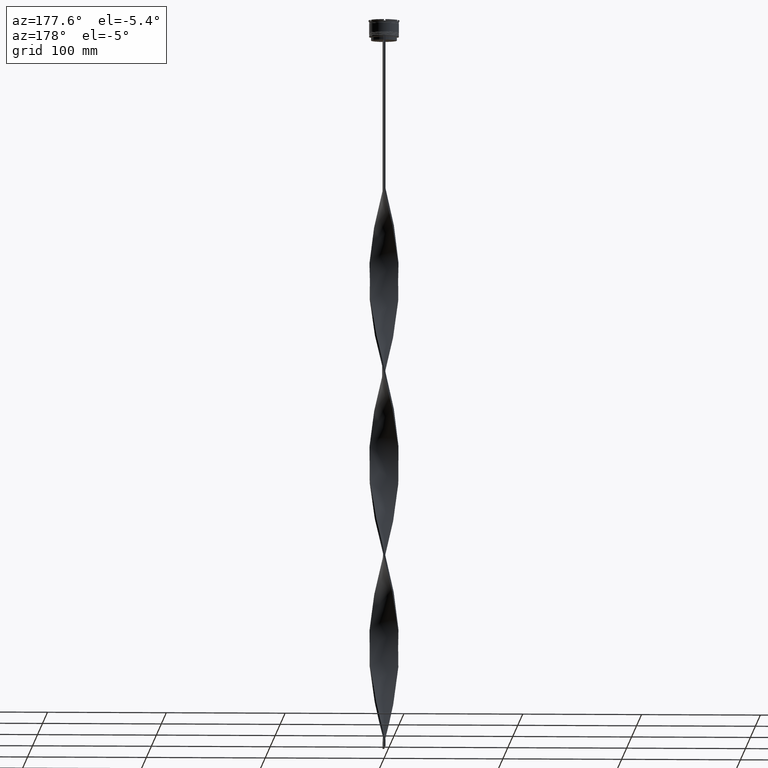
[diagram: clean part render]
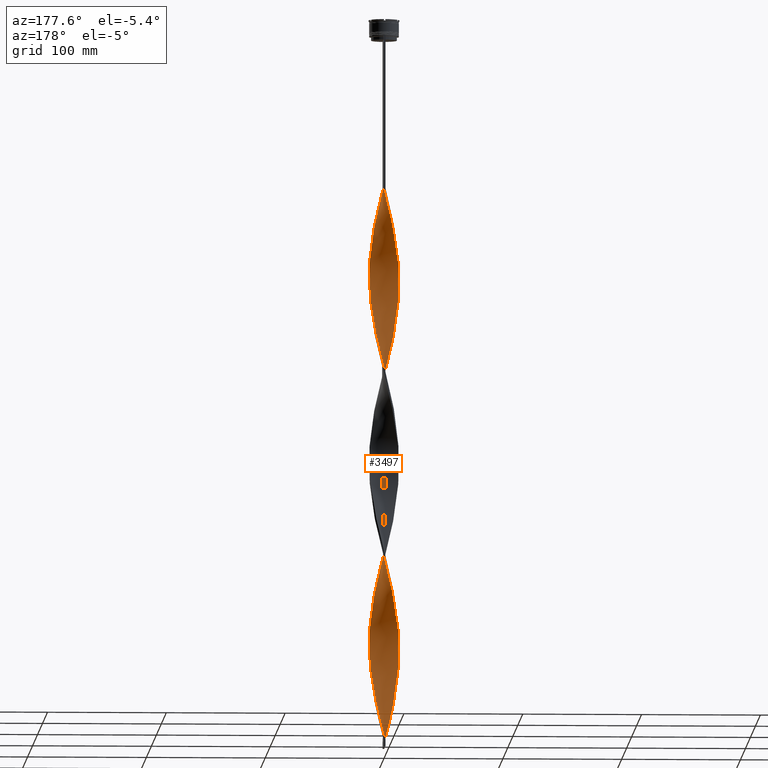
[diagram: same view with one face highlighted and labeled with its STEP entity id]
A machine part, auxiliary view. The second image highlights one B-rep face of the part: STEP entity #3497.
In plain terms, the highlighted face is a freeform B-spline surface patch.
Its self-contained STEP definition (entity closure, byte-faithful):
#2 = CARTESIAN_POINT ( 'NONE',  ( -7.345575697064969489, 10.17230168627751929, -326.2933333333333508 ) ) ;
#14 = CARTESIAN_POINT ( 'NONE',  ( 3.155646990963159038, -12.14393247619489813, -313.8666666666666742 ) ) ;
#16 = CARTESIAN_POINT ( 'NONE',  ( 4.652802097321414365, 11.65266650003840887, -276.5866666666667584 ) ) ;
#25 = CARTESIAN_POINT ( 'NONE',  ( -10.15222897254093937, -7.331080881363972068, -403.9600000000000364 ) ) ;
#36 = CARTESIAN_POINT ( 'NONE',  ( -3.155646990963155485, 12.14393247619489813, -158.5333333333333883 ) ) ;
#38 = CARTESIAN_POINT ( 'NONE',  ( 11.94434152831508911, 3.842643539664265084, -233.0933333333333906 ) ) ;
#45 = CARTESIAN_POINT ( 'NONE',  ( 12.52242699500038015, -0.03636144779521242182, -528.2266666666666879 ) ) ;
#54 = CARTESIAN_POINT ( 'NONE',  ( 10.57441756647771136, 6.753880147568771086, -407.0666666666666629 ) ) ;
#57 = CARTESIAN_POINT ( 'NONE',  ( -11.94434152831508911, 3.842643539664264196, -518.9066666666666379 ) ) ;
#59 = CARTESIAN_POINT ( 'NONE',  ( 11.94434152831508911, 3.842643539664265084, -543.7599999999999909 ) ) ;
#73 = CARTESIAN_POINT ( 'NONE',  ( 4.652802097321414365, 11.65266650003840887, -587.2533333333335577 ) ) ;
#80 = CARTESIAN_POINT ( 'NONE',  ( -9.690996458280338288, 7.969804989054246391, -500.2666666666666515 ) ) ;
#82 = CARTESIAN_POINT ( 'NONE',  ( 4.652802097321416142, -11.65266650003840709, -320.0800000000000978 ) ) ;
#84 = CARTESIAN_POINT ( 'NONE',  ( -7.345575697064968601, -10.17230168627752107, -581.0400000000000773 ) ) ;
#86 = CARTESIAN_POINT ( 'NONE',  ( -0.8225793935679387436, -12.49543369160420170, -447.4533333333333758 ) ) ;
#98 = CARTESIAN_POINT ( 'NONE',  ( 12.52013932661148665, -0.8242057753937837017, -525.1200000000001182 ) ) ;
#106 = CARTESIAN_POINT ( 'NONE',  ( 11.92182448545693774, 3.911943871774660408, -394.6399999999999864 ) ) ;
#107 = CARTESIAN_POINT ( 'NONE',  ( 10.15222897254094470, -7.331080881363965851, -348.0400000000000205 ) ) ;
#109 = CARTESIAN_POINT ( 'NONE',  ( -11.33752076354115701, -5.375297838653134264, -556.1866666666668380 ) ) ;
#111 = CARTESIAN_POINT ( 'NONE',  ( -6.740552907874695521, -10.55355136890620216, -422.6000000000000227 ) ) ;
#121 = CARTESIAN_POINT ( 'NONE',  ( 9.103565294674670128, -8.598697513321127417, -490.9466666666667152 ) ) ;
#129 = CARTESIAN_POINT ( 'NONE',  ( -3.155646990963155485, 12.14393247619489813, -469.2000000000001023 ) ) ;
#130 = CARTESIAN_POINT ( 'NONE',  ( 11.36854588750133388, -5.309366094152151661, -357.3600000000000705 ) ) ;
#132 = CARTESIAN_POINT ( 'NONE',  ( -10.15222897254094114, 7.331080881363969404, -503.3733333333334485 ) ) ;
#135 = CARTESIAN_POINT ( 'NONE',  ( -10.99100368715144072, -6.000861433912922926, -397.7466666666666697 ) ) ;
#151 = CARTESIAN_POINT ( 'NONE',  ( 4.585052370405616529, -11.67949051451277143, -469.2000000000001023 ) ) ;
#162 = CARTESIAN_POINT ( 'NONE',  ( 11.36854588750133388, -5.309366094152151661, -357.3600000000001273 ) ) ;
#163 = CARTESIAN_POINT ( 'NONE',  ( -9.103565294674666575, -8.598697513321130970, -261.0533333333333417 ) ) ;
#167 = CARTESIAN_POINT ( 'NONE',  ( 11.33752076354116056, -5.375297838653129823, -506.4800000000001319 ) ) ;
#185 = CARTESIAN_POINT ( 'NONE',  ( 2.310751445539661830, -12.30743384125774575, -149.2133333333333383 ) ) ;
#186 = CARTESIAN_POINT ( 'NONE',  ( 12.42824121570641083, -1.533401540437619115, -372.8933333333333735 ) ) ;
#207 = CARTESIAN_POINT ( 'NONE',  ( 10.10948352700888542, -7.389914939776779157, -186.4933333333333394 ) ) ;
#235 = CARTESIAN_POINT ( 'NONE',  ( 10.57441756647771847, -6.753880147568761316, -189.6000000000000227 ) ) ;
#245 = VERTEX_POINT ( 'NONE', #1828 ) ;
#249 = CARTESIAN_POINT ( 'NONE',  ( -12.52471466338928074, -0.7514828798033545976, -376.0000000000000568 ) ) ;
#257 = CARTESIAN_POINT ( 'NONE',  ( 3.085069550408702010, -12.16205368295573130, -152.3200000000000500 ) ) ;
#271 = CARTESIAN_POINT ( 'NONE',  ( 12.11996919947063134, -3.149420042465478353, -205.1333333333333542 ) ) ;
#278 = CARTESIAN_POINT ( 'NONE',  ( 3.835060960407158603, -11.92077209873424870, -155.4266666666666765 ) ) ;
#295 = CARTESIAN_POINT ( 'NONE',  ( 9.153347542385848357, 8.545684803940464036, -254.8400000000000034 ) ) ;
#301 = CARTESIAN_POINT ( 'NONE',  ( -8.010112353542551134, 9.625518172214162504, -180.2800000000000296 ) ) ;
#307 = CARTESIAN_POINT ( 'NONE',  ( 1.536433340670622538, -12.45281399955976553, -456.7733333333334258 ) ) ;
#319 = CARTESIAN_POINT ( 'NONE',  ( -0.03643334067062180964, 12.54718600044023979, -146.1066666666667118 ) ) ;
#327 = CARTESIAN_POINT ( 'NONE',  ( -10.61346148680155288, 6.692356773673692416, -195.8133333333333610 ) ) ;
#330 = CARTESIAN_POINT ( 'NONE',  ( -12.33176776802354802, -2.315320201071886075, -382.2133333333333667 ) ) ;
#340 = CARTESIAN_POINT ( 'NONE',  ( -12.33176776802354802, 2.315320201071886519, -214.4533333333333758 ) ) ;
#350 = CARTESIAN_POINT ( 'NONE',  ( -6.740552907874695521, -10.55355136890620216, -422.6000000000000227 ) ) ;
#359 = CARTESIAN_POINT ( 'NONE',  ( -12.52242699500038015, -0.03636144779521361531, -223.7733333333333405 ) ) ;
#370 = CARTESIAN_POINT ( 'NONE',  ( -12.42824121570641083, -1.533401540437625332, -379.1066666666666833 ) ) ;
#384 = CARTESIAN_POINT ( 'NONE',  ( -9.153347542385848357, 8.545684803940464036, -186.4933333333333394 ) ) ;
#387 = CARTESIAN_POINT ( 'NONE',  ( 9.644549487540052368, -8.025949731984795221, -183.3866666666666845 ) ) ;
#399 = CARTESIAN_POINT ( 'NONE',  ( -8.562581101809289663, 9.171445294657457836, -332.5066666666668311 ) ) ;
#410 = CARTESIAN_POINT ( 'NONE',  ( -5.298889272974661502, -11.34611265908963595, -279.6933333333333280 ) ) ;
#412 = CARTESIAN_POINT ( 'NONE',  ( 10.10948352700888542, -7.389914939776779157, -186.4933333333333394 ) ) ;
#419 = CARTESIAN_POINT ( 'NONE',  ( 8.615698626491363754, 9.121564618826683457, -568.6133333333333439 ) ) ;
#433 = CARTESIAN_POINT ( 'NONE',  ( 8.615698626491363754, 9.121564618826683457, -568.6133333333334576 ) ) ;
#440 = CARTESIAN_POINT ( 'NONE',  ( 10.61346148680155110, 6.692356773673695081, -556.1866666666668380 ) ) ;
#447 = CARTESIAN_POINT ( 'NONE',  ( -4.652802097321417030, 11.65266650003840709, -475.4133333333333553 ) ) ;
#450 = CARTESIAN_POINT ( 'NONE',  ( -12.42824121570641083, 1.533401540437620225, -528.2266666666666879 ) ) ;
#452 = CARTESIAN_POINT ( 'NONE',  ( -11.65644370790820972, -4.576004816908206152, -391.5333333333334167 ) ) ;
#467 = CARTESIAN_POINT ( 'NONE',  ( 0.03643334067061888837, 12.54718600044023979, -605.8933333333335440 ) ) ;
#475 = CARTESIAN_POINT ( 'NONE',  ( 3.835060960407154607, 11.92077209873424870, -441.2400000000000091 ) ) ;
#477 = CARTESIAN_POINT ( 'NONE',  ( 11.62967262449904915, 4.643620855213893783, -397.7466666666666697 ) ) ;
#479 = CARTESIAN_POINT ( 'NONE',  ( -10.57441756647771847, -6.753880147568761316, -562.4000000000000909 ) ) ;
#481 = CARTESIAN_POINT ( 'NONE',  ( 9.153347542385848357, 8.545684803940464036, -565.5066666666666606 ) ) ;
#502 = CARTESIAN_POINT ( 'NONE',  ( 0.7500000000000002220, 12.50000000000000000, -453.6666666666667425 ) ) ;
#503 = CARTESIAN_POINT ( 'NONE',  ( 7.954078399437118918, 9.671873490467493895, -422.6000000000000227 ) ) ;
#505 = CARTESIAN_POINT ( 'NONE',  ( -1.536433340670619652, -12.45281399955976553, -605.8933333333335440 ) ) ;
#507 = CARTESIAN_POINT ( 'NONE',  ( -0.03643334067062040105, -12.54718600044023979, -450.5600000000000023 ) ) ;
#517 = CARTESIAN_POINT ( 'NONE',  ( 6.679150936304339758, -10.59251824497200900, -478.5200000000000387 ) ) ;
#525 = CARTESIAN_POINT ( 'NONE',  ( -3.904224544142286035, 11.89829948811665083, -472.3066666666667288 ) ) ;
#526 = CARTESIAN_POINT ( 'NONE',  ( -12.11996919947063134, -3.149420042465479241, -236.2000000000000171 ) ) ;
#528 = CARTESIAN_POINT ( 'NONE',  ( -10.10948352700888542, -7.389914939776780933, -565.5066666666666606 ) ) ;
#530 = CARTESIAN_POINT ( 'NONE',  ( 2.310751445539661830, -12.30743384125774575, -459.8799999999999955 ) ) ;
#552 = CARTESIAN_POINT ( 'NONE',  ( -11.36854588750133388, 5.309366094152151661, -512.6933333333333849 ) ) ;
#554 = CARTESIAN_POINT ( 'NONE',  ( 8.010112353542551134, -9.625518172214162504, -335.6133333333334008 ) ) ;
#573 = CARTESIAN_POINT ( 'NONE',  ( 5.298889272974663278, -11.34611265908963418, -161.6400000000000148 ) ) ;
#594 = CARTESIAN_POINT ( 'NONE',  ( 10.61346148680155110, 6.692356773673695081, -245.5200000000000387 ) ) ;
#621 = CARTESIAN_POINT ( 'NONE',  ( -12.52242699500038015, -0.03636144779521361531, -534.4400000000000546 ) ) ;
#635 = CARTESIAN_POINT ( 'NONE',  ( -3.835060960407161712, 11.92077209873424870, -310.7600000000000477 ) ) ;
#645 = CARTESIAN_POINT ( 'NONE',  ( -10.57441756647771847, -6.753880147568761316, -562.4000000000000909 ) ) ;
#658 = CARTESIAN_POINT ( 'NONE',  ( 11.65644370790820794, 4.576004816908210593, -236.2000000000000171 ) ) ;
#666 = CARTESIAN_POINT ( 'NONE',  ( -11.92182448545694129, -3.911943871774656412, -549.9733333333333576 ) ) ;
#676 = FACE_OUTER_BOUND ( 'NONE', #4247, .T. ) ;
#695 = CARTESIAN_POINT ( 'NONE',  ( -6.679150936304340647, 10.59251824497200900, -323.1866666666667243 ) ) ;
#706 = CARTESIAN_POINT ( 'NONE',  ( -11.36854588750133388, 5.309366094152151661, -202.0266666666667277 ) ) ;
#716 = CARTESIAN_POINT ( 'NONE',  ( -9.153347542385844804, -8.545684803940465812, -410.1733333333334031 ) ) ;
#728 = CARTESIAN_POINT ( 'NONE',  ( -10.99100368715144072, 6.000861433912922926, -198.9200000000000159 ) ) ;
#738 = CARTESIAN_POINT ( 'NONE',  ( 6.076579735155669404, 10.97763101221075921, -270.3733333333333348 ) ) ;
#740 = CARTESIAN_POINT ( 'NONE',  ( -0.7499999999999962252, -12.50000000000000000, -609.0000000000000000 ) ) ;
#748 = CARTESIAN_POINT ( 'NONE',  ( -4.652802097321417030, 11.65266650003840709, -164.7466666666667265 ) ) ;
#750 = CARTESIAN_POINT ( 'NONE',  ( 10.15222897254093937, 7.331080881363972068, -248.6266666666666936 ) ) ;
#760 = CARTESIAN_POINT ( 'NONE',  ( -11.94434152831508911, -3.842643539664266417, -388.4266666666667334 ) ) ;
#772 = CARTESIAN_POINT ( 'NONE',  ( -4.585052370405612976, -11.67949051451277143, -282.8000000000000682 ) ) ;
#775 = CARTESIAN_POINT ( 'NONE',  ( 6.740552907874705291, 10.55355136890619860, -267.2666666666667084 ) ) ;
#795 = CARTESIAN_POINT ( 'NONE',  ( -10.99100368715144072, 6.000861433912922926, -509.5866666666666447 ) ) ;
#797 = CARTESIAN_POINT ( 'NONE',  ( 3.904224544142283371, 11.89829948811665261, -279.6933333333333280 ) ) ;
#805 = CARTESIAN_POINT ( 'NONE',  ( 10.99100368715144072, 6.000861433912924703, -553.0800000000000409 ) ) ;
#814 = CARTESIAN_POINT ( 'NONE',  ( 3.085069550408702455, 12.16205368295573130, -444.3466666666667493 ) ) ;
#818 = CARTESIAN_POINT ( 'NONE',  ( 2.310751445539656057, 12.30743384125774753, -447.4533333333333758 ) ) ;
#820 = CARTESIAN_POINT ( 'NONE',  ( 12.41912662004790313, -1.605550994275039667, -522.0133333333334349 ) ) ;
#825 = CARTESIAN_POINT ( 'NONE',  ( 0.7500000000000002220, -12.50000000000000000, -143.0000000000000284 ) ) ;
#828 = CARTESIAN_POINT ( 'NONE',  ( 3.085069550408702010, -12.16205368295573130, -462.9866666666666788 ) ) ;
#836 = CARTESIAN_POINT ( 'NONE',  ( -12.33176776802354802, 2.315320201071886519, -525.1200000000001182 ) ) ;
#837 = CARTESIAN_POINT ( 'NONE',  ( 11.65644370790820794, -4.576004816908210593, -360.4666666666666970 ) ) ;
#839 = CARTESIAN_POINT ( 'NONE',  ( -10.61346148680155288, 6.692356773673692416, -506.4800000000001319 ) ) ;
#840 = CARTESIAN_POINT ( 'NONE',  ( 9.690996458280338288, 7.969804989054245503, -562.4000000000000909 ) ) ;
#856 = CARTESIAN_POINT ( 'NONE',  ( 11.92182448545694129, -3.911943871774654635, -512.6933333333333849 ) ) ;
#864 = CARTESIAN_POINT ( 'NONE',  ( 12.41912662004790313, 1.605550994275047660, -385.3199999999999932 ) ) ;
#865 = CARTESIAN_POINT ( 'NONE',  ( 2.382186218714214210, -12.29380692948152820, -310.7600000000000477 ) ) ;
#867 = CARTESIAN_POINT ( 'NONE',  ( -3.904224544142286035, 11.89829948811665083, -472.3066666666667288 ) ) ;
#869 = CARTESIAN_POINT ( 'NONE',  ( 6.740552907874705291, 10.55355136890619860, -577.9333333333333940 ) ) ;
#878 = CARTESIAN_POINT ( 'NONE',  ( 7.954078399437126023, -9.671873490467488566, -174.0666666666666629 ) ) ;
#880 = CARTESIAN_POINT ( 'NONE',  ( 12.33176776802354624, 2.315320201071887851, -537.5466666666667379 ) ) ;
#889 = CARTESIAN_POINT ( 'NONE',  ( 11.65644370790820794, -4.576004816908210593, -360.4666666666666970 ) ) ;
#890 = CARTESIAN_POINT ( 'NONE',  ( 12.11996919947063311, 3.149420042465475245, -391.5333333333334167 ) ) ;
#893 = CARTESIAN_POINT ( 'NONE',  ( -12.52013932661148310, -0.8242057753937852560, -537.5466666666667379 ) ) ;
#895 = CARTESIAN_POINT ( 'NONE',  ( 3.085069550408702010, -12.16205368295573130, -462.9866666666667356 ) ) ;
#912 = CARTESIAN_POINT ( 'NONE',  ( -1.608725446465267606, 12.44368138276816538, -462.9866666666666788 ) ) ;
#913 = CARTESIAN_POINT ( 'NONE',  ( 12.13805464816931767, -3.078981870368074691, -366.6800000000000068 ) ) ;
#917 = CARTESIAN_POINT ( 'NONE',  ( 12.13805464816931412, 3.078981870368077356, -540.6533333333334213 ) ) ;
#928 = CARTESIAN_POINT ( 'NONE',  ( 5.298889272974663278, -11.34611265908963418, -161.6400000000000148 ) ) ;
#939 = CARTESIAN_POINT ( 'NONE',  ( -3.835060960407159047, -11.92077209873424870, -596.5733333333333803 ) ) ;
#940 = CARTESIAN_POINT ( 'NONE',  ( -11.62967262449904915, -4.643620855213893783, -242.4133333333333553 ) ) ;
#945 = CARTESIAN_POINT ( 'NONE',  ( 4.652802097321414365, 11.65266650003840887, -587.2533333333335577 ) ) ;
#962 = CARTESIAN_POINT ( 'NONE',  ( 12.11996919947063134, -3.149420042465478353, -205.1333333333333542 ) ) ;
#967 = CARTESIAN_POINT ( 'NONE',  ( 2.382186218714211989, 12.29380692948152820, -596.5733333333333803 ) ) ;
#984 = CARTESIAN_POINT ( 'NONE',  ( 6.679150936304339758, -10.59251824497200900, -167.8533333333333530 ) ) ;
#1000 = CARTESIAN_POINT ( 'NONE',  ( 3.155646990963151932, 12.14393247619489813, -282.8000000000000682 ) ) ;
#1009 = CARTESIAN_POINT ( 'NONE',  ( -3.904224544142286035, 11.89829948811665083, -161.6400000000000148 ) ) ;
#1012 = CARTESIAN_POINT ( 'NONE',  ( -12.11996919947063134, -3.149420042465479241, -546.8666666666666742 ) ) ;
#1028 = CARTESIAN_POINT ( 'NONE',  ( -1.536433340670622094, 12.45281399955976553, -301.4400000000000546 ) ) ;
#1035 = CARTESIAN_POINT ( 'NONE',  ( -2.382186218714211545, 12.29380692948152820, -155.4266666666666765 ) ) ;
#1038 = CARTESIAN_POINT ( 'NONE',  ( 9.690996458280338288, 7.969804989054246391, -251.7333333333334338 ) ) ;
#1048 = CARTESIAN_POINT ( 'NONE',  ( 6.740552907874707067, -10.55355136890619683, -329.4000000000000341 ) ) ;
#1059 = CARTESIAN_POINT ( 'NONE',  ( -9.690996458280338288, 7.969804989054245503, -189.6000000000000227 ) ) ;
#1062 = CARTESIAN_POINT ( 'NONE',  ( -12.41912662004790313, 1.605550994275040999, -366.6800000000000068 ) ) ;
#1074 = CARTESIAN_POINT ( 'NONE',  ( -12.52471466338928074, 0.7514828798033548196, -220.6666666666666856 ) ) ;
#1084 = CARTESIAN_POINT ( 'NONE',  ( -12.41912662004790313, -1.605550994275043664, -229.9866666666666788 ) ) ;
#1090 = CARTESIAN_POINT ( 'NONE',  ( -0.7500000000000042188, 12.50000000000000000, -298.3333333333333144 ) ) ;
#1103 = CARTESIAN_POINT ( 'NONE',  ( 0.7500000000000002220, 12.50000000000000000, -143.0000000000000284 ) ) ;
#1114 = CARTESIAN_POINT ( 'NONE',  ( -0.8225793935679387436, -12.49543369160420170, -447.4533333333333758 ) ) ;
#1124 = CARTESIAN_POINT ( 'NONE',  ( -12.42824121570641083, 1.533401540437620225, -217.5600000000000307 ) ) ;
#1126 = CARTESIAN_POINT ( 'NONE',  ( 11.62967262449904915, -4.643620855213893783, -198.9200000000000159 ) ) ;
#1135 = CARTESIAN_POINT ( 'NONE',  ( -0.03643334067062039411, -12.54718600044023979, -450.5600000000000023 ) ) ;
#1139 = ORIENTED_EDGE ( 'NONE', *, *, #1230, .F. ) ;
#1144 = CARTESIAN_POINT ( 'NONE',  ( -11.62967262449904915, -4.643620855213893783, -242.4133333333333553 ) ) ;
#1146 = CARTESIAN_POINT ( 'NONE',  ( -11.62967262449905270, 4.643620855213886678, -354.2533333333333871 ) ) ;
#1155 = CARTESIAN_POINT ( 'NONE',  ( -3.835060960407161712, 11.92077209873424870, -310.7600000000000477 ) ) ;
#1158 = CARTESIAN_POINT ( 'NONE',  ( -0.7499999999999988898, -4.166666666666667851, -609.0000000000000000 ) ) ;
#1172 = CARTESIAN_POINT ( 'NONE',  ( 8.615698626491363754, 9.121564618826683457, -257.9466666666666583 ) ) ;
#1180 = CARTESIAN_POINT ( 'NONE',  ( 8.562581101809286110, -9.171445294657459613, -487.8400000000000887 ) ) ;
#1188 = CARTESIAN_POINT ( 'NONE',  ( 12.52471466338928074, -0.7514828798033591495, -376.0000000000000568 ) ) ;
#1191 = CARTESIAN_POINT ( 'NONE',  ( -12.52242699500038015, -0.03636144779521361531, -534.4400000000000546 ) ) ;
#1193 = CARTESIAN_POINT ( 'NONE',  ( -4.652802097321410812, -11.65266650003840887, -431.9200000000000728 ) ) ;
#1200 = CARTESIAN_POINT ( 'NONE',  ( 7.954078399437126023, -9.671873490467488566, -484.7333333333333485 ) ) ;
#1209 = CARTESIAN_POINT ( 'NONE',  ( -10.15222897254094114, 7.331080881363969404, -503.3733333333334485 ) ) ;
#1210 = CARTESIAN_POINT ( 'NONE',  ( 3.904224544142290032, -11.89829948811664906, -316.9733333333333576 ) ) ;
#1212 = CARTESIAN_POINT ( 'NONE',  ( -4.585052370405612088, -11.67949051451277143, -593.4666666666666970 ) ) ;
#1215 = CARTESIAN_POINT ( 'NONE',  ( -10.61346148680154755, -6.692356773673698633, -400.8533333333334099 ) ) ;
#1222 = CARTESIAN_POINT ( 'NONE',  ( 8.010112353542547581, 9.625518172214162504, -571.7200000000000273 ) ) ;
#1230 = EDGE_CURVE ( 'NONE', #245, #3029, #2772, .T. ) ;
#1233 = CARTESIAN_POINT ( 'NONE',  ( 7.954078399437118918, 9.671873490467493895, -422.6000000000000227 ) ) ;
#1234 = CARTESIAN_POINT ( 'NONE',  ( -8.562581101809280781, -9.171445294657461389, -264.1600000000000819 ) ) ;
#1236 = CARTESIAN_POINT ( 'NONE',  ( -7.954078399437126912, -9.671873490467486789, -577.9333333333333940 ) ) ;
#1238 = CARTESIAN_POINT ( 'NONE',  ( -9.153347542385844804, -8.545684803940465812, -410.1733333333334031 ) ) ;
#1252 = CARTESIAN_POINT ( 'NONE',  ( 12.42824121570641083, 1.533401540437621557, -534.4400000000000546 ) ) ;
#1259 = CARTESIAN_POINT ( 'NONE',  ( -6.740552907874703514, 10.55355136890620038, -484.7333333333333485 ) ) ;
#1261 = CARTESIAN_POINT ( 'NONE',  ( -6.012726175543710028, -11.01273480366650048, -276.5866666666667584 ) ) ;
#1263 = CARTESIAN_POINT ( 'NONE',  ( 4.585052370405608535, 11.67949051451277320, -438.1333333333334394 ) ) ;
#1264 = CARTESIAN_POINT ( 'NONE',  ( -0.7500000000000042188, 12.50000000000000000, -609.0000000000000000 ) ) ;
#1265 = CARTESIAN_POINT ( 'NONE',  ( 12.52242699500038015, -0.03636144779521242182, -528.2266666666666879 ) ) ;
#1282 = CARTESIAN_POINT ( 'NONE',  ( 4.585052370405608535, 11.67949051451277320, -438.1333333333334394 ) ) ;
#1283 = CARTESIAN_POINT ( 'NONE',  ( 5.364690916238544105, -11.31514875612458226, -323.1866666666667243 ) ) ;
#1287 = CARTESIAN_POINT ( 'NONE',  ( 12.11996919947063134, -3.149420042465478353, -515.8000000000000682 ) ) ;
#1303 = CARTESIAN_POINT ( 'NONE',  ( 12.13805464816931412, 3.078981870368077356, -229.9866666666666788 ) ) ;
#1304 = CARTESIAN_POINT ( 'NONE',  ( 6.679150936304339758, 10.59251824497200900, -428.8133333333333894 ) ) ;
#1308 = CARTESIAN_POINT ( 'NONE',  ( 0.8225793935679426294, 12.49543369160420347, -602.7866666666667470 ) ) ;
#1331 = CARTESIAN_POINT ( 'NONE',  ( 10.95596916500943863, -6.064588993110946014, -192.7066666666667061 ) ) ;
#1351 = CARTESIAN_POINT ( 'NONE',  ( -4.585052370405612976, -11.67949051451277143, -593.4666666666666970 ) ) ;
#1365 = CARTESIAN_POINT ( 'NONE',  ( 2.382186218714211989, 12.29380692948152820, -285.9066666666666947 ) ) ;
#1371 = CARTESIAN_POINT ( 'NONE',  ( -3.155646990963155485, 12.14393247619489813, -158.5333333333333883 ) ) ;
#1373 = CARTESIAN_POINT ( 'NONE',  ( 11.36854588750133388, 5.309366094152153437, -239.3066666666667288 ) ) ;
#1392 = CARTESIAN_POINT ( 'NONE',  ( -10.57441756647771669, 6.753880147568764869, -344.9333333333334508 ) ) ;
#1405 = CARTESIAN_POINT ( 'NONE',  ( 9.153347542385848357, 8.545684803940464036, -254.8400000000000034 ) ) ;
#1420 = CARTESIAN_POINT ( 'NONE',  ( -11.33752076354115879, 5.375297838653132487, -351.1466666666667038 ) ) ;
#1425 = CARTESIAN_POINT ( 'NONE',  ( -0.03643334067062180964, 12.54718600044023979, -146.1066666666667118 ) ) ;
#1428 = CARTESIAN_POINT ( 'NONE',  ( -11.36854588750133033, -5.309366094152156101, -394.6399999999999864 ) ) ;
#1439 = CARTESIAN_POINT ( 'NONE',  ( -11.33752076354115701, -5.375297838653134264, -245.5200000000000387 ) ) ;
#1448 = CARTESIAN_POINT ( 'NONE',  ( -12.52242699500038015, -0.03636144779521361531, -223.7733333333333405 ) ) ;
#1451 = CARTESIAN_POINT ( 'NONE',  ( 2.382186218714211989, 12.29380692948152820, -285.9066666666666947 ) ) ;
#1460 = CARTESIAN_POINT ( 'NONE',  ( -3.085069550408701122, -12.16205368295573130, -289.0133333333333212 ) ) ;
#1475 = CARTESIAN_POINT ( 'NONE',  ( -11.65644370790820972, -4.576004816908206152, -391.5333333333334167 ) ) ;
#1487 = CARTESIAN_POINT ( 'NONE',  ( 2.382186218714214210, -12.29380692948152820, -310.7600000000000477 ) ) ;
#1497 = CARTESIAN_POINT ( 'NONE',  ( -11.92182448545694129, 3.911943871774654635, -357.3600000000001273 ) ) ;
#1501 = VERTEX_POINT ( 'NONE', #1264 ) ;
#1510 = CARTESIAN_POINT ( 'NONE',  ( -3.085069550408703787, 12.16205368295572953, -307.6533333333333644 ) ) ;
#1518 = CARTESIAN_POINT ( 'NONE',  ( -9.103565294674670128, 8.598697513321127417, -335.6133333333334008 ) ) ;
#1531 = CARTESIAN_POINT ( 'NONE',  ( -12.31811391348432494, 2.386896213156294966, -363.5733333333334372 ) ) ;
#1540 = CARTESIAN_POINT ( 'NONE',  ( 11.36854588750133388, 5.309366094152153437, -549.9733333333333576 ) ) ;
#1552 = CARTESIAN_POINT ( 'NONE',  ( 9.153347542385848357, -8.545684803940462260, -341.8266666666667106 ) ) ;
#1555 = CARTESIAN_POINT ( 'NONE',  ( -12.33176776802354624, 2.315320201071886075, -525.1200000000001182 ) ) ;
#1559 = CARTESIAN_POINT ( 'NONE',  ( -7.404526080593736737, -10.12947172560163978, -419.4933333333333962 ) ) ;
#1569 = CARTESIAN_POINT ( 'NONE',  ( 0.8225793935679426294, 12.49543369160420347, -602.7866666666667470 ) ) ;
#1576 = CARTESIAN_POINT ( 'NONE',  ( 8.010112353542551134, -9.625518172214162504, -335.6133333333334008 ) ) ;
#1577 = CARTESIAN_POINT ( 'NONE',  ( 6.740552907874707067, -10.55355136890619683, -329.4000000000000341 ) ) ;
#1579 = CARTESIAN_POINT ( 'NONE',  ( -6.679150936304338870, -10.59251824497200900, -584.1466666666666470 ) ) ;
#1581 = CARTESIAN_POINT ( 'NONE',  ( 7.345575697064968601, -10.17230168627752107, -481.6266666666667788 ) ) ;
#1599 = CARTESIAN_POINT ( 'NONE',  ( 11.62967262449904915, 4.643620855213893783, -397.7466666666666697 ) ) ;
#1600 = CARTESIAN_POINT ( 'NONE',  ( 9.644549487540052368, 8.025949731984795221, -413.2800000000000864 ) ) ;
#1602 = CARTESIAN_POINT ( 'NONE',  ( -8.615698626491365530, 9.121564618826681681, -494.0533333333333985 ) ) ;
#1604 = CARTESIAN_POINT ( 'NONE',  ( -8.010112353542544028, -9.625518172214164281, -416.3866666666666561 ) ) ;
#1611 = CARTESIAN_POINT ( 'NONE',  ( 3.835060960407158603, -11.92077209873424870, -155.4266666666666765 ) ) ;
#1622 = CARTESIAN_POINT ( 'NONE',  ( 6.012726175543707363, 11.01273480366650048, -431.9200000000000728 ) ) ;
#1624 = CARTESIAN_POINT ( 'NONE',  ( 3.155646990963159482, -12.14393247619489813, -313.8666666666666742 ) ) ;
#1626 = CARTESIAN_POINT ( 'NONE',  ( 0.7500000000000002220, 12.50000000000000000, -453.6666666666667425 ) ) ;
#1628 = CARTESIAN_POINT ( 'NONE',  ( 9.644549487540052368, -8.025949731984795221, -494.0533333333333985 ) ) ;
#1640 = CARTESIAN_POINT ( 'NONE',  ( 11.65644370790820794, 4.576004816908210593, -546.8666666666666742 ) ) ;
#1646 = CARTESIAN_POINT ( 'NONE',  ( 12.42824121570641083, -1.533401540437619115, -372.8933333333333735 ) ) ;
#1647 = CARTESIAN_POINT ( 'NONE',  ( -11.92182448545694129, -3.911943871774655967, -239.3066666666667288 ) ) ;
#1651 = CARTESIAN_POINT ( 'NONE',  ( 1.536433340670622316, -12.45281399955976553, -456.7733333333334258 ) ) ;
#1669 = CARTESIAN_POINT ( 'NONE',  ( -5.298889272974661502, -11.34611265908963595, -590.3600000000000136 ) ) ;
#1670 = CARTESIAN_POINT ( 'NONE',  ( 10.57441756647771136, 6.753880147568771086, -407.0666666666666629 ) ) ;
#1690 = CARTESIAN_POINT ( 'NONE',  ( -10.10948352700888542, -7.389914939776780933, -565.5066666666666606 ) ) ;
#1718 = CARTESIAN_POINT ( 'NONE',  ( 12.33176776802354624, 2.315320201071887851, -226.8800000000000523 ) ) ;
#1730 = CARTESIAN_POINT ( 'NONE',  ( 12.41912662004790313, -1.605550994275039667, -211.3466666666666924 ) ) ;
#1738 = CARTESIAN_POINT ( 'NONE',  ( 12.52013932661148665, -0.8242057753937837017, -214.4533333333333758 ) ) ;
#1753 = CARTESIAN_POINT ( 'NONE',  ( -5.298889272974667719, 11.34611265908963240, -316.9733333333333576 ) ) ;
#1761 = CARTESIAN_POINT ( 'NONE',  ( 7.345575697064968601, -10.17230168627752107, -170.9600000000000080 ) ) ;
#1779 = CARTESIAN_POINT ( 'NONE',  ( 12.42824121570641083, 1.533401540437621557, -223.7733333333333405 ) ) ;
#1787 = CARTESIAN_POINT ( 'NONE',  ( -9.153347542385848357, 8.545684803940464036, -186.4933333333333394 ) ) ;
#1790 = CARTESIAN_POINT ( 'NONE',  ( -3.904224544142285147, -11.89829948811665261, -435.0266666666667561 ) ) ;
#1800 = CARTESIAN_POINT ( 'NONE',  ( -11.65644370790820794, 4.576004816908208817, -205.1333333333333542 ) ) ;
#1810 = CARTESIAN_POINT ( 'NONE',  ( -10.99100368715144072, 6.000861433912922926, -198.9200000000000159 ) ) ;
#1813 = CARTESIAN_POINT ( 'NONE',  ( -3.085069550408703787, 12.16205368295572953, -307.6533333333334213 ) ) ;
#1822 = CARTESIAN_POINT ( 'NONE',  ( -7.345575697064968601, -10.17230168627752107, -270.3733333333333348 ) ) ;
#1828 = CARTESIAN_POINT ( 'NONE',  ( 0.7500000000000002220, -12.50000000000000000, -143.0000000000000284 ) ) ;
#1833 = CARTESIAN_POINT ( 'NONE',  ( -5.364690916238543217, -11.31514875612458226, -428.8133333333333894 ) ) ;
#1844 = CARTESIAN_POINT ( 'NONE',  ( 1.608725446465269382, -12.44368138276816360, -307.6533333333334213 ) ) ;
#1863 = CARTESIAN_POINT ( 'NONE',  ( -6.076579735155664963, -10.97763101221075921, -425.7066666666667629 ) ) ;
#1876 = CARTESIAN_POINT ( 'NONE',  ( 0.8225793935679449609, -12.49543369160420347, -304.5466666666666811 ) ) ;
#1878 = CARTESIAN_POINT ( 'NONE',  ( 12.33176776802354446, 2.315320201071887407, -226.8800000000000523 ) ) ;
#1886 = CARTESIAN_POINT ( 'NONE',  ( -10.57441756647771669, 6.753880147568764869, -344.9333333333334508 ) ) ;
#1889 = CARTESIAN_POINT ( 'NONE',  ( -0.7500000000000042188, 12.50000000000000000, -609.0000000000000000 ) ) ;
#1899 = CARTESIAN_POINT ( 'NONE',  ( -0.7499999999999962252, -12.50000000000000000, -298.3333333333333144 ) ) ;
#1901 = CARTESIAN_POINT ( 'NONE',  ( -6.012726175543711804, 11.01273480366649871, -320.0800000000000978 ) ) ;
#1918 = CARTESIAN_POINT ( 'NONE',  ( 6.012726175543706475, 11.01273480366650048, -431.9200000000000728 ) ) ;
#1920 = CARTESIAN_POINT ( 'NONE',  ( 8.010112353542547581, 9.625518172214162504, -571.7200000000000273 ) ) ;
#1929 = CARTESIAN_POINT ( 'NONE',  ( 6.076579735155669404, 10.97763101221075921, -581.0400000000000773 ) ) ;
#1940 = CARTESIAN_POINT ( 'NONE',  ( -5.364690916238543217, 11.31514875612458226, -478.5200000000000387 ) ) ;
#1942 = CARTESIAN_POINT ( 'NONE',  ( -1.536433340670619652, -12.45281399955976553, -295.2266666666667447 ) ) ;
#1944 = CARTESIAN_POINT ( 'NONE',  ( -2.382186218714211545, 12.29380692948152820, -466.0933333333333621 ) ) ;
#1947 = CARTESIAN_POINT ( 'NONE',  ( -9.690996458280331183, -7.969804989054253497, -407.0666666666666629 ) ) ;
#1957 = CARTESIAN_POINT ( 'NONE',  ( 12.52471466338928074, 0.7514828798033589274, -531.3333333333334849 ) ) ;
#1965 = CARTESIAN_POINT ( 'NONE',  ( 10.15222897254094470, -7.331080881363965851, -348.0400000000000205 ) ) ;
#1967 = CARTESIAN_POINT ( 'NONE',  ( -12.31811391348432316, -2.386896213156300295, -233.0933333333333906 ) ) ;
#1970 = CARTESIAN_POINT ( 'NONE',  ( -9.644549487540050592, -8.025949731984796998, -568.6133333333334576 ) ) ;
#1972 = CARTESIAN_POINT ( 'NONE',  ( 10.61346148680154933, 6.692356773673695081, -556.1866666666668380 ) ) ;
#1981 = CARTESIAN_POINT ( 'NONE',  ( 11.33752076354116056, -5.375297838653129823, -506.4800000000001887 ) ) ;
#1988 = CARTESIAN_POINT ( 'NONE',  ( 8.615698626491365530, -9.121564618826681681, -338.7200000000000273 ) ) ;
#1989 = CARTESIAN_POINT ( 'NONE',  ( 7.345575697064964160, 10.17230168627752107, -425.7066666666667061 ) ) ;
#1991 = CARTESIAN_POINT ( 'NONE',  ( -11.65644370790820794, 4.576004816908208817, -515.8000000000000682 ) ) ;
#1993 = CARTESIAN_POINT ( 'NONE',  ( 7.954078399437126023, -9.671873490467488566, -484.7333333333333485 ) ) ;
#1999 = CARTESIAN_POINT ( 'NONE',  ( 9.103565294674670128, -8.598697513321127417, -180.2800000000000296 ) ) ;
#2001 = CARTESIAN_POINT ( 'NONE',  ( 10.95596916500943863, -6.064588993110946014, -503.3733333333334485 ) ) ;
#2013 = CARTESIAN_POINT ( 'NONE',  ( -9.153347542385848357, 8.545684803940464036, -497.1600000000000250 ) ) ;
#2014 = CARTESIAN_POINT ( 'NONE',  ( -10.57441756647771847, -6.753880147568761316, -251.7333333333334338 ) ) ;
#2016 = CARTESIAN_POINT ( 'NONE',  ( -3.835060960407159047, -11.92077209873424870, -596.5733333333333803 ) ) ;
#2018 = CARTESIAN_POINT ( 'NONE',  ( 12.52013932661148488, -0.8242057753937837017, -525.1200000000001182 ) ) ;
#2039 = CARTESIAN_POINT ( 'NONE',  ( -11.65644370790820794, 4.576004816908208817, -515.8000000000000682 ) ) ;
#2040 = CARTESIAN_POINT ( 'NONE',  ( 6.076579735155671180, -10.97763101221075743, -326.2933333333333508 ) ) ;
#2061 = CARTESIAN_POINT ( 'NONE',  ( 6.012726175543713580, -11.01273480366649871, -164.7466666666667265 ) ) ;
#2066 = CARTESIAN_POINT ( 'NONE',  ( 5.364690916238542329, 11.31514875612458226, -584.1466666666666470 ) ) ;
#2082 = CARTESIAN_POINT ( 'NONE',  ( 11.33752076354116056, -5.375297838653129823, -195.8133333333333610 ) ) ;
#2101 = CARTESIAN_POINT ( 'NONE',  ( 2.310751445539661830, -12.30743384125774575, -149.2133333333333383 ) ) ;
#2111 = CARTESIAN_POINT ( 'NONE',  ( -2.310751445539660054, -12.30743384125774575, -602.7866666666667470 ) ) ;
#2124 = B_SPLINE_CURVE_WITH_KNOTS ( 'NONE', 3,
 ( #740, #1158, #4453, #1889 ),
 .UNSPECIFIED., .F., .F.,
 ( 4, 4 ),
 ( 0.000000000000000000, 1.000000000000000000 ),
 .UNSPECIFIED. ) ;
#2126 = CARTESIAN_POINT ( 'NONE',  ( 10.95596916500943863, -6.064588993110946014, -192.7066666666667061 ) ) ;
#2132 = CARTESIAN_POINT ( 'NONE',  ( -8.615698626491365530, 9.121564618826681681, -183.3866666666666845 ) ) ;
#2136 = CARTESIAN_POINT ( 'NONE',  ( -6.679150936304338870, -10.59251824497200900, -584.1466666666666470 ) ) ;
#2150 = CARTESIAN_POINT ( 'NONE',  ( -4.585052370405619193, 11.67949051451277143, -313.8666666666666742 ) ) ;
#2155 = CARTESIAN_POINT ( 'NONE',  ( -4.652802097321417030, 11.65266650003840709, -164.7466666666666981 ) ) ;
#2157 = CARTESIAN_POINT ( 'NONE',  ( -1.608725446465268050, -12.44368138276816538, -444.3466666666667493 ) ) ;
#2163 = CARTESIAN_POINT ( 'NONE',  ( 0.7500000000000002220, 12.50000000000000000, -143.0000000000000284 ) ) ;
#2168 = CARTESIAN_POINT ( 'NONE',  ( -8.010112353542551134, 9.625518172214162504, -180.2800000000000296 ) ) ;
#2184 = CARTESIAN_POINT ( 'NONE',  ( -11.65644370790820794, 4.576004816908208817, -205.1333333333333542 ) ) ;
#2187 = CARTESIAN_POINT ( 'NONE',  ( -11.62967262449905270, 4.643620855213886678, -354.2533333333333871 ) ) ;
#2198 = CARTESIAN_POINT ( 'NONE',  ( -9.103565294674666575, -8.598697513321130970, -261.0533333333333417 ) ) ;
#2212 = CARTESIAN_POINT ( 'NONE',  ( -8.010112353542544028, -9.625518172214164281, -416.3866666666666561 ) ) ;
#2222 = CARTESIAN_POINT ( 'NONE',  ( -12.41912662004790313, -1.605550994275043664, -229.9866666666666788 ) ) ;
#2231 = CARTESIAN_POINT ( 'NONE',  ( -5.298889272974667719, 11.34611265908963240, -316.9733333333333576 ) ) ;
#2240 = CARTESIAN_POINT ( 'NONE',  ( -10.61346148680155466, 6.692356773673692416, -195.8133333333333610 ) ) ;
#2242 = CARTESIAN_POINT ( 'NONE',  ( 12.52013932661148488, -0.8242057753937837017, -214.4533333333333758 ) ) ;
#2260 = CARTESIAN_POINT ( 'NONE',  ( -10.61346148680154933, -6.692356773673698633, -400.8533333333334099 ) ) ;
#2271 = CARTESIAN_POINT ( 'NONE',  ( -6.740552907874703514, 10.55355136890620038, -174.0666666666666629 ) ) ;
#2273 = CARTESIAN_POINT ( 'NONE',  ( 0.03643334067061888837, 12.54718600044023979, -295.2266666666667447 ) ) ;
#2295 = CARTESIAN_POINT ( 'NONE',  ( -10.10948352700888542, 7.389914939776777381, -341.8266666666667106 ) ) ;
#2303 = CARTESIAN_POINT ( 'NONE',  ( 9.153347542385848357, 8.545684803940464036, -565.5066666666666606 ) ) ;
#2310 = CARTESIAN_POINT ( 'NONE',  ( 12.52013932661148665, 0.8242057753937834796, -382.2133333333333667 ) ) ;
#2313 = CARTESIAN_POINT ( 'NONE',  ( -12.52471466338928074, 0.7514828798033548196, -531.3333333333335986 ) ) ;
#2315 = CARTESIAN_POINT ( 'NONE',  ( -12.33176776802354624, -2.315320201071885631, -382.2133333333334235 ) ) ;
#2324 = CARTESIAN_POINT ( 'NONE',  ( 3.904224544142283371, 11.89829948811665261, -590.3600000000000136 ) ) ;
#2333 = CARTESIAN_POINT ( 'NONE',  ( -12.42824121570641083, 1.533401540437620225, -528.2266666666666879 ) ) ;
#2334 = CARTESIAN_POINT ( 'NONE',  ( 12.52242699500038015, 0.03636144779521762599, -379.1066666666666833 ) ) ;
#2336 = CARTESIAN_POINT ( 'NONE',  ( -10.95596916500943685, -6.064588993110949566, -559.2933333333334076 ) ) ;
#2339 = CARTESIAN_POINT ( 'NONE',  ( 10.95596916500943863, -6.064588993110946014, -503.3733333333334485 ) ) ;
#2340 = EDGE_CURVE ( 'NONE', #3029, #3881, #2988, .T. ) ;
#2350 = CARTESIAN_POINT ( 'NONE',  ( 10.15222897254093937, 7.331080881363972068, -559.2933333333334076 ) ) ;
#2358 = CARTESIAN_POINT ( 'NONE',  ( 5.298889272974663278, 11.34611265908963595, -435.0266666666667561 ) ) ;
#2359 = CARTESIAN_POINT ( 'NONE',  ( 12.52471466338928074, -0.7514828798033591495, -376.0000000000000568 ) ) ;
#2361 = CARTESIAN_POINT ( 'NONE',  ( -3.085069550408701122, -12.16205368295573130, -599.6799999999999500 ) ) ;
#2363 = CARTESIAN_POINT ( 'NONE',  ( 3.835060960407158603, -11.92077209873424870, -466.0933333333333621 ) ) ;
#2371 = CARTESIAN_POINT ( 'NONE',  ( 8.562581101809284334, -9.171445294657459613, -177.1733333333333462 ) ) ;
#2375 = CARTESIAN_POINT ( 'NONE',  ( 3.835060960407158603, -11.92077209873424870, -466.0933333333333621 ) ) ;
#2382 = CARTESIAN_POINT ( 'NONE',  ( 12.52242699500038015, 0.03636144779521762599, -379.1066666666666833 ) ) ;
#2383 = CARTESIAN_POINT ( 'NONE',  ( 12.31811391348432316, 2.386896213156301183, -388.4266666666667334 ) ) ;
#2385 = CARTESIAN_POINT ( 'NONE',  ( -12.31811391348432316, -2.386896213156300295, -543.7599999999999909 ) ) ;
#2387 = CARTESIAN_POINT ( 'NONE',  ( -8.615698626491365530, -9.121564618826681681, -413.2800000000000864 ) ) ;
#2395 = CARTESIAN_POINT ( 'NONE',  ( 7.345575697064968601, -10.17230168627752107, -170.9600000000000364 ) ) ;
#2408 = CARTESIAN_POINT ( 'NONE',  ( 2.310751445539656057, 12.30743384125774753, -447.4533333333333758 ) ) ;
#2409 = CARTESIAN_POINT ( 'NONE',  ( -10.95596916500943685, -6.064588993110949566, -248.6266666666666936 ) ) ;
#2434 = CARTESIAN_POINT ( 'NONE',  ( 8.562581101809286110, -9.171445294657459613, -177.1733333333333462 ) ) ;
#2436 = CARTESIAN_POINT ( 'NONE',  ( -7.345575697064968601, -10.17230168627752107, -270.3733333333333348 ) ) ;
#2440 = CARTESIAN_POINT ( 'NONE',  ( 3.155646990963151932, 12.14393247619489813, -593.4666666666666970 ) ) ;
#2458 = CARTESIAN_POINT ( 'NONE',  ( 12.42824121570641083, 1.533401540437621557, -223.7733333333333405 ) ) ;
#2482 = CARTESIAN_POINT ( 'NONE',  ( -7.954078399437126912, -9.671873490467486789, -577.9333333333333940 ) ) ;
#2502 = CARTESIAN_POINT ( 'NONE',  ( 12.52471466338928074, 0.7514828798033589274, -220.6666666666667140 ) ) ;
#2510 = CARTESIAN_POINT ( 'NONE',  ( -12.52013932661148488, -0.8242057753937852560, -537.5466666666667379 ) ) ;
#2524 = CARTESIAN_POINT ( 'NONE',  ( -2.310751445539662274, 12.30743384125774575, -304.5466666666666811 ) ) ;
#2534 = CARTESIAN_POINT ( 'NONE',  ( 8.615698626491363754, 9.121564618826683457, -257.9466666666666583 ) ) ;
#2543 = CARTESIAN_POINT ( 'NONE',  ( -6.679150936304338870, -10.59251824497200900, -273.4800000000000750 ) ) ;
#2557 = CARTESIAN_POINT ( 'NONE',  ( 3.155646990963152376, 12.14393247619489813, -282.8000000000000682 ) ) ;
#2568 = CARTESIAN_POINT ( 'NONE',  ( -5.364690916238543217, 11.31514875612458226, -167.8533333333333530 ) ) ;
#2583 = CARTESIAN_POINT ( 'NONE',  ( -12.13805464816931767, 3.078981870368073359, -211.3466666666666924 ) ) ;
#2586 = CARTESIAN_POINT ( 'NONE',  ( -11.33752076354115879, 5.375297838653132487, -351.1466666666667606 ) ) ;
#2597 = CARTESIAN_POINT ( 'NONE',  ( -1.536433340670619652, -12.45281399955976553, -295.2266666666667447 ) ) ;
#2608 = CARTESIAN_POINT ( 'NONE',  ( 3.904224544142283371, 11.89829948811665261, -279.6933333333333280 ) ) ;
#2617 = CARTESIAN_POINT ( 'NONE',  ( -8.562581101809282558, -9.171445294657461389, -264.1600000000000819 ) ) ;
#2619 = CARTESIAN_POINT ( 'NONE',  ( 12.13805464816931412, 3.078981870368077356, -229.9866666666666788 ) ) ;
#2629 = CARTESIAN_POINT ( 'NONE',  ( 6.740552907874705291, 10.55355136890619860, -267.2666666666667084 ) ) ;
#2641 = CARTESIAN_POINT ( 'NONE',  ( -8.615698626491365530, 9.121564618826681681, -183.3866666666666845 ) ) ;
#2643 = CARTESIAN_POINT ( 'NONE',  ( -9.644549487540052368, 8.025949731984795221, -338.7200000000000273 ) ) ;
#2658 = CARTESIAN_POINT ( 'NONE',  ( -2.382186218714207548, -12.29380692948152998, -441.2400000000000091 ) ) ;
#2670 = CARTESIAN_POINT ( 'NONE',  ( 10.99100368715144072, 6.000861433912924703, -242.4133333333333553 ) ) ;
#2676 =( BOUNDED_CURVE ( )  B_SPLINE_CURVE ( 2, ( #3872, #2795, #2101, #4291, #1611, #4667, #928, #3113, #2748, #2395, #878, #2371, #1999, #387, #412, #3241, #2126, #3636, #1126, #3410, #271, #3264, #1730, #2242, #3294, #2502, #1779, #1878, #2619, #38, #658, #4365, #2670, #4167, #750, #4115, #295, #1172, #4397, #3747, #775, #4512, #4738, #16, #797, #1000, #1365, #4024, #3998, #2273, #3389, #1028, #2524, #1510, #635, #2150, #1753, #1901, #3775, #3660, #4761, #3011, #4536, #2643, #2295, #1392, #4788, #1420, #1146, #2921, #4421, #1531, #3033, #4136, #2895, #249, #2865, #2315, #3461, #2693, #452, #3533, #135, #1215, #3866, #1947, #1238, #2387, #1604, #1559, #111, #4260, #3888, #1193, #4189, #3159, #3061, #3815, #86, #507, #4562, #1651, #530, #895, #2363, #3106, #2740, #4658, #4236, #1581, #1993, #3504, #2789, #1628, #3084, #3134, #2339, #167, #4585, #2714, #1287, #4635, #820, #2018, #1265, #4284, #3843, #3482, #917, #59, #2765, #4209, #4607, #1972, #3796, #840, #481, #433, #1920, #3430, #869, #3650, #2066, #945, #3961, #2440, #967, #4681, #1308, #2811, #2835 ),
 .UNSPECIFIED., .F., .T. ) 
 B_SPLINE_CURVE_WITH_KNOTS ( ( 3, 2, 2, 2, 2, 2, 2, 2, 2, 2, 2, 2, 2, 2, 2, 2, 2, 2, 2, 2, 2, 2, 2, 2, 2, 2, 2, 2, 2, 2, 2, 2, 2, 2, 2, 2, 2, 2, 2, 2, 2, 2, 2, 2, 2, 2, 2, 2, 2, 2, 2, 2, 2, 2, 2, 2, 2, 2, 2, 2, 2, 2, 2, 2, 2, 2, 2, 2, 2, 2, 2, 2, 2, 2, 2, 3 ),
 ( 0.000000000000000000, 0.01000000000000000021, 0.02000000000000000042, 0.02999999999999999889, 0.04000000000000000083, 0.05000000000000000971, 0.05999999999999999778, 0.07000000000000000666, 0.08000000000000000167, 0.09000000000000001055, 0.1000000000000000194, 0.1100000000000000006, 0.1199999999999999956, 0.1300000000000000044, 0.1400000000000000133, 0.1499999999999999944, 0.1600000000000000033, 0.1700000000000000122, 0.1800000000000000211, 0.1900000000000000300, 0.2000000000000000389, 0.2099999999999999922, 0.2200000000000000011, 0.2300000000000000100, 0.2399999999999999911, 0.2500000000000000000, 0.2600000000000000089, 0.2700000000000000178, 0.2800000000000000266, 0.2899999999999999800, 0.2999999999999999889, 0.3099999999999999978, 0.3200000000000000067, 0.3300000000000000155, 0.3400000000000000244, 0.3499999999999999223, 0.3600000000000000422, 0.3699999999999999400, 0.3800000000000000600, 0.3899999999999999578, 0.4000000000000000777, 0.4099999999999999756, 0.4199999999999999845, 0.4299999999999999933, 0.4400000000000000022, 0.4500000000000000111, 0.4600000000000000200, 0.4699999999999999734, 0.4799999999999999822, 0.4899999999999999911, 0.5000000000000000000, 0.5100000000000000089, 0.5200000000000000178, 0.5300000000000000266, 0.5400000000000000355, 0.5500000000000000444, 0.5600000000000000533, 0.5699999999999999512, 0.5799999999999999600, 0.5899999999999999689, 0.5999999999999999778, 0.6099999999999999867, 0.6199999999999999956, 0.6300000000000000044, 0.6400000000000000133, 0.6500000000000000222, 0.6600000000000000311, 0.6700000000000000400, 0.6800000000000000488, 0.6899999999999999467, 0.6999999999999998446, 0.7099999999999999645, 0.7200000000000000844, 0.7299999999999999822, 0.7399999999999998801, 0.7500000000000000000 ),
 .UNSPECIFIED. ) 
 CURVE ( )  GEOMETRIC_REPRESENTATION_ITEM ( )  RATIONAL_B_SPLINE_CURVE ( ( 1.000000000000000000, 0.9980267284282715590, 1.000000000000000000, 0.9980267284282715590, 1.000000000000000000, 0.9980267284282715590, 1.000000000000000000, 0.9980267284282715590, 1.000000000000000000, 0.9980267284282715590, 1.000000000000000000, 0.9980267284282715590, 1.000000000000000000, 0.9980267284282715590, 1.000000000000000000, 0.9980267284282715590, 1.000000000000000000, 0.9980267284282715590, 1.000000000000000000, 0.9980267284282715590, 1.000000000000000000, 0.9980267284282715590, 1.000000000000000000, 0.9980267284282715590, 1.000000000000000000, 0.9980267284282715590, 1.000000000000000000, 0.9980267284282715590, 1.000000000000000000, 0.9980267284282715590, 1.000000000000000000, 0.9980267284282715590, 1.000000000000000000, 0.9980267284282715590, 1.000000000000000000, 0.9980267284282715590, 1.000000000000000000, 0.9980267284282715590, 1.000000000000000000, 0.9980267284282715590, 1.000000000000000000, 0.9980267284282715590, 1.000000000000000000, 0.9980267284282715590, 1.000000000000000000, 0.9980267284282715590, 1.000000000000000000, 0.9980267284282715590, 1.000000000000000000, 0.9980267284282715590, 1.000000000000000000, 0.9980267284282715590, 1.000000000000000000, 0.9980267284282715590, 1.000000000000000000, 0.9980267284282715590, 1.000000000000000000, 0.9980267284282715590, 1.000000000000000000, 0.9980267284282715590, 1.000000000000000000, 0.9980267284282715590, 1.000000000000000000, 0.9980267284282715590, 1.000000000000000000, 0.9980267284282715590, 1.000000000000000000, 0.9980267284282715590, 1.000000000000000000, 0.9980267284282715590, 1.000000000000000000, 0.9980267284282715590, 1.000000000000000000, 0.9980267284282715590, 1.000000000000000000, 0.9980267284282715590, 1.000000000000000000, 0.9980267284282715590, 1.000000000000000000, 0.9980267284282715590, 1.000000000000000000, 0.9980267284282715590, 1.000000000000000000, 0.9980267284282715590, 1.000000000000000000, 0.9980267284282715590, 1.000000000000000000, 0.9980267284282715590, 1.000000000000000000, 0.9980267284282715590, 1.000000000000000000, 0.9980267284282715590, 1.000000000000000000, 0.9980267284282715590, 1.000000000000000000, 0.9980267284282715590, 1.000000000000000000, 0.9980267284282715590, 1.000000000000000000, 0.9980267284282715590, 1.000000000000000000, 0.9980267284282715590, 1.000000000000000000, 0.9980267284282715590, 1.000000000000000000, 0.9980267284282715590, 1.000000000000000000, 0.9980267284282715590, 1.000000000000000000, 0.9980267284282715590, 1.000000000000000000, 0.9980267284282715590, 1.000000000000000000, 0.9980267284282715590, 1.000000000000000000, 0.9980267284282715590, 1.000000000000000000, 0.9980267284282715590, 1.000000000000000000, 0.9980267284282715590, 1.000000000000000000, 0.9980267284282715590, 1.000000000000000000, 0.9980267284282715590, 1.000000000000000000, 0.9980267284282715590, 1.000000000000000000, 0.9980267284282715590, 1.000000000000000000, 0.9980267284282715590, 1.000000000000000000, 0.9980267284282715590, 1.000000000000000000, 0.9980267284282715590, 1.000000000000000000, 0.9980267284282715590, 1.000000000000000000, 0.9980267284282715590, 1.000000000000000000, 0.9980267284282715590, 1.000000000000000000, 0.9980267284282715590, 1.000000000000000000, 0.9980267284282715590, 1.000000000000000000, 0.9980267284282715590, 1.000000000000000000, 0.9980267284282715590, 1.000000000000000000, 0.9980267284282715590, 1.000000000000000000 ) ) 
 REPRESENTATION_ITEM ( '' )  );
#2678 = CARTESIAN_POINT ( 'NONE',  ( 11.94434152831508911, 3.842643539664265528, -543.7599999999999909 ) ) ;
#2688 = CARTESIAN_POINT ( 'NONE',  ( 9.690996458280336512, -7.969804989054249056, -344.9333333333334508 ) ) ;
#2691 = CARTESIAN_POINT ( 'NONE',  ( 5.298889272974663278, 11.34611265908963595, -435.0266666666667561 ) ) ;
#2693 = CARTESIAN_POINT ( 'NONE',  ( -11.94434152831508911, -3.842643539664265973, -388.4266666666667334 ) ) ;
#2708 = CARTESIAN_POINT ( 'NONE',  ( -12.13805464816931767, 3.078981870368073359, -522.0133333333334349 ) ) ;
#2710 = CARTESIAN_POINT ( 'NONE',  ( 10.61346148680155110, -6.692356773673693304, -351.1466666666667038 ) ) ;
#2712 = CARTESIAN_POINT ( 'NONE',  ( -11.36854588750133388, 5.309366094152151661, -512.6933333333334986 ) ) ;
#2714 = CARTESIAN_POINT ( 'NONE',  ( 11.92182448545694129, -3.911943871774654191, -512.6933333333334986 ) ) ;
#2724 = CARTESIAN_POINT ( 'NONE',  ( 5.298889272974663278, -11.34611265908963418, -472.3066666666667288 ) ) ;
#2735 = CARTESIAN_POINT ( 'NONE',  ( 6.679150936304339758, 10.59251824497200900, -428.8133333333333894 ) ) ;
#2736 = CARTESIAN_POINT ( 'NONE',  ( -6.679150936304338870, -10.59251824497200900, -273.4800000000000750 ) ) ;
#2738 = CARTESIAN_POINT ( 'NONE',  ( -7.404526080593738513, 10.12947172560163800, -487.8400000000000887 ) ) ;
#2740 = CARTESIAN_POINT ( 'NONE',  ( 5.298889272974663278, -11.34611265908963418, -472.3066666666667288 ) ) ;
#2748 = CARTESIAN_POINT ( 'NONE',  ( 6.679150936304339758, -10.59251824497200900, -167.8533333333333530 ) ) ;
#2750 = CARTESIAN_POINT ( 'NONE',  ( -0.7500000000000042188, 12.50000000000000000, -609.0000000000000000 ) ) ;
#2759 = CARTESIAN_POINT ( 'NONE',  ( -7.404526080593738513, 10.12947172560163800, -487.8400000000000887 ) ) ;
#2761 = CARTESIAN_POINT ( 'NONE',  ( 11.94434152831509088, -3.842643539664260199, -363.5733333333334372 ) ) ;
#2763 = CARTESIAN_POINT ( 'NONE',  ( -0.8225793935679445168, 12.49543369160420347, -459.8799999999999955 ) ) ;
#2765 = CARTESIAN_POINT ( 'NONE',  ( 11.65644370790820794, 4.576004816908210593, -546.8666666666666742 ) ) ;
#2772 = LINE ( 'NONE', #825, #3902 ) ;
#2783 = CARTESIAN_POINT ( 'NONE',  ( -10.61346148680155466, 6.692356773673692416, -506.4800000000001887 ) ) ;
#2784 = CARTESIAN_POINT ( 'NONE',  ( 8.615698626491365530, -9.121564618826681681, -338.7200000000000273 ) ) ;
#2785 = EDGE_CURVE ( 'NONE', #245, #1501, #2676, .T. ) ;
#2789 = CARTESIAN_POINT ( 'NONE',  ( 9.103565294674670128, -8.598697513321127417, -490.9466666666667152 ) ) ;
#2795 = CARTESIAN_POINT ( 'NONE',  ( 1.536433340670622316, -12.45281399955976553, -146.1066666666667118 ) ) ;
#2806 = CARTESIAN_POINT ( 'NONE',  ( 1.536433340670622538, -12.45281399955976553, -146.1066666666667118 ) ) ;
#2807 = CARTESIAN_POINT ( 'NONE',  ( 8.562581101809282558, 9.171445294657461389, -419.4933333333333962 ) ) ;
#2811 = CARTESIAN_POINT ( 'NONE',  ( 0.03643334067061888837, 12.54718600044023979, -605.8933333333335440 ) ) ;
#2829 = CARTESIAN_POINT ( 'NONE',  ( -7.345575697064968601, -10.17230168627752107, -581.0400000000000773 ) ) ;
#2835 = CARTESIAN_POINT ( 'NONE',  ( -0.7500000000000042188, 12.50000000000000000, -609.0000000000000000 ) ) ;
#2851 = CARTESIAN_POINT ( 'NONE',  ( -1.536433340670619652, -12.45281399955976553, -605.8933333333335440 ) ) ;
#2865 = CARTESIAN_POINT ( 'NONE',  ( -12.42824121570641083, -1.533401540437625332, -379.1066666666666833 ) ) ;
#2870 = CARTESIAN_POINT ( 'NONE',  ( -5.364690916238543217, 11.31514875612458226, -167.8533333333333530 ) ) ;
#2872 = CARTESIAN_POINT ( 'NONE',  ( 10.99100368715144072, 6.000861433912924703, -242.4133333333333553 ) ) ;
#2895 = CARTESIAN_POINT ( 'NONE',  ( -12.52242699500038015, 0.03636144779521122833, -372.8933333333333735 ) ) ;
#2904 = CARTESIAN_POINT ( 'NONE',  ( -12.31811391348432316, -2.386896213156299851, -543.7599999999999909 ) ) ;
#2915 = CARTESIAN_POINT ( 'NONE',  ( 5.364690916238544105, -11.31514875612458226, -323.1866666666667243 ) ) ;
#2921 = CARTESIAN_POINT ( 'NONE',  ( -11.92182448545694129, 3.911943871774654191, -357.3600000000000705 ) ) ;
#2930 = CARTESIAN_POINT ( 'NONE',  ( 7.404526080593734960, 10.12947172560163978, -264.1600000000000819 ) ) ;
#2941 = CARTESIAN_POINT ( 'NONE',  ( -10.95596916500943685, -6.064588993110949566, -248.6266666666666936 ) ) ;
#2949 = CARTESIAN_POINT ( 'NONE',  ( -11.36854588750133388, 5.309366094152151661, -202.0266666666667277 ) ) ;
#2952 = CARTESIAN_POINT ( 'NONE',  ( 5.364690916238542329, 11.31514875612458226, -273.4800000000000750 ) ) ;
#2961 = CARTESIAN_POINT ( 'NONE',  ( -2.310751445539660054, -12.30743384125774575, -292.1200000000000614 ) ) ;
#2975 = CARTESIAN_POINT ( 'NONE',  ( -4.652802097321410812, -11.65266650003840887, -431.9200000000000728 ) ) ;
#2986 = CARTESIAN_POINT ( 'NONE',  ( -2.382186218714211545, 12.29380692948152820, -155.4266666666666765 ) ) ;
#2988 =( BOUNDED_CURVE ( )  B_SPLINE_CURVE ( 2, ( #3246, #1425, #4403, #4743, #1035, #1371, #1009, #2155, #2870, #4372, #4005, #3665, #301, #2132, #1787, #1059, #3194, #327, #1810, #2949, #2184, #4079, #2583, #3693, #3326, #4818, #1448, #4448, #1084, #1967, #526, #1647, #940, #3101, #2409, #2014, #4603, #3884, #163, #1234, #3155, #2436, #2736, #1261, #3934, #4205, #3129, #3528, #4631, #1942, #4232, #3861, #3457, #4654, #865, #1624, #1210, #82, #1283, #2040, #1577, #3500, #554, #2784, #3080, #4581, #107, #2710, #4280, #130, #837, #2761, #913, #4256, #186, #2359, #2334, #4306, #3839, #2383, #890, #3910, #477, #3549, #3478, #1670, #3175, #1600, #4676, #2807, #503, #1989, #1304, #1918, #2691, #1263, #3082, #3103, #818, #3459, #1626, #4165, #2763, #3864, #1944, #3428, #867, #4207, #4187, #3794, #4258, #2738, #3813, #1602, #4560, #3841, #132, #839, #795, #2712, #1991, #57, #4534, #1555, #450, #2313, #1191, #893, #4234, #2385, #3886, #3131, #3502, #109, #2336, #479, #528, #1970, #3059, #4605, #1236, #84, #1579, #4633, #4583, #1212, #2016, #2361, #3480, #505, #3530 ),
 .UNSPECIFIED., .F., .T. ) 
 B_SPLINE_CURVE_WITH_KNOTS ( ( 3, 2, 2, 2, 2, 2, 2, 2, 2, 2, 2, 2, 2, 2, 2, 2, 2, 2, 2, 2, 2, 2, 2, 2, 2, 2, 2, 2, 2, 2, 2, 2, 2, 2, 2, 2, 2, 2, 2, 2, 2, 2, 2, 2, 2, 2, 2, 2, 2, 2, 2, 2, 2, 2, 2, 2, 2, 2, 2, 2, 2, 2, 2, 2, 2, 2, 2, 2, 2, 2, 2, 2, 2, 2, 2, 3 ),
 ( 0.000000000000000000, 0.01000000000000000021, 0.02000000000000000042, 0.02999999999999999889, 0.04000000000000000083, 0.05000000000000000971, 0.05999999999999999778, 0.07000000000000000666, 0.08000000000000000167, 0.09000000000000001055, 0.1000000000000000194, 0.1100000000000000006, 0.1199999999999999956, 0.1300000000000000044, 0.1400000000000000133, 0.1499999999999999944, 0.1600000000000000033, 0.1700000000000000122, 0.1800000000000000211, 0.1900000000000000300, 0.2000000000000000389, 0.2099999999999999922, 0.2200000000000000011, 0.2300000000000000100, 0.2399999999999999911, 0.2500000000000000000, 0.2600000000000000089, 0.2700000000000000178, 0.2800000000000000266, 0.2899999999999999800, 0.2999999999999999889, 0.3099999999999999978, 0.3200000000000000067, 0.3300000000000000155, 0.3400000000000000244, 0.3499999999999999223, 0.3600000000000000422, 0.3699999999999999400, 0.3800000000000000600, 0.3899999999999999578, 0.4000000000000000777, 0.4099999999999999756, 0.4199999999999999845, 0.4299999999999999933, 0.4400000000000000022, 0.4500000000000000111, 0.4600000000000000200, 0.4699999999999999734, 0.4799999999999999822, 0.4899999999999999911, 0.5000000000000000000, 0.5100000000000000089, 0.5200000000000000178, 0.5300000000000000266, 0.5400000000000000355, 0.5500000000000000444, 0.5600000000000000533, 0.5699999999999999512, 0.5799999999999999600, 0.5899999999999999689, 0.5999999999999999778, 0.6099999999999999867, 0.6199999999999999956, 0.6300000000000000044, 0.6400000000000000133, 0.6500000000000000222, 0.6600000000000000311, 0.6700000000000000400, 0.6800000000000000488, 0.6899999999999999467, 0.6999999999999998446, 0.7099999999999999645, 0.7200000000000000844, 0.7299999999999999822, 0.7399999999999998801, 0.7500000000000000000 ),
 .UNSPECIFIED. ) 
 CURVE ( )  GEOMETRIC_REPRESENTATION_ITEM ( )  RATIONAL_B_SPLINE_CURVE ( ( 1.000000000000000000, 0.9980267284282715590, 1.000000000000000000, 0.9980267284282715590, 1.000000000000000000, 0.9980267284282715590, 1.000000000000000000, 0.9980267284282715590, 1.000000000000000000, 0.9980267284282715590, 1.000000000000000000, 0.9980267284282715590, 1.000000000000000000, 0.9980267284282715590, 1.000000000000000000, 0.9980267284282715590, 1.000000000000000000, 0.9980267284282715590, 1.000000000000000000, 0.9980267284282715590, 1.000000000000000000, 0.9980267284282715590, 1.000000000000000000, 0.9980267284282715590, 1.000000000000000000, 0.9980267284282715590, 1.000000000000000000, 0.9980267284282715590, 1.000000000000000000, 0.9980267284282715590, 1.000000000000000000, 0.9980267284282715590, 1.000000000000000000, 0.9980267284282715590, 1.000000000000000000, 0.9980267284282715590, 1.000000000000000000, 0.9980267284282715590, 1.000000000000000000, 0.9980267284282715590, 1.000000000000000000, 0.9980267284282715590, 1.000000000000000000, 0.9980267284282715590, 1.000000000000000000, 0.9980267284282715590, 1.000000000000000000, 0.9980267284282715590, 1.000000000000000000, 0.9980267284282715590, 1.000000000000000000, 0.9980267284282715590, 1.000000000000000000, 0.9980267284282715590, 1.000000000000000000, 0.9980267284282715590, 1.000000000000000000, 0.9980267284282715590, 1.000000000000000000, 0.9980267284282715590, 1.000000000000000000, 0.9980267284282715590, 1.000000000000000000, 0.9980267284282715590, 1.000000000000000000, 0.9980267284282715590, 1.000000000000000000, 0.9980267284282715590, 1.000000000000000000, 0.9980267284282715590, 1.000000000000000000, 0.9980267284282715590, 1.000000000000000000, 0.9980267284282715590, 1.000000000000000000, 0.9980267284282715590, 1.000000000000000000, 0.9980267284282715590, 1.000000000000000000, 0.9980267284282715590, 1.000000000000000000, 0.9980267284282715590, 1.000000000000000000, 0.9980267284282715590, 1.000000000000000000, 0.9980267284282715590, 1.000000000000000000, 0.9980267284282715590, 1.000000000000000000, 0.9980267284282715590, 1.000000000000000000, 0.9980267284282715590, 1.000000000000000000, 0.9980267284282715590, 1.000000000000000000, 0.9980267284282715590, 1.000000000000000000, 0.9980267284282715590, 1.000000000000000000, 0.9980267284282715590, 1.000000000000000000, 0.9980267284282715590, 1.000000000000000000, 0.9980267284282715590, 1.000000000000000000, 0.9980267284282715590, 1.000000000000000000, 0.9980267284282715590, 1.000000000000000000, 0.9980267284282715590, 1.000000000000000000, 0.9980267284282715590, 1.000000000000000000, 0.9980267284282715590, 1.000000000000000000, 0.9980267284282715590, 1.000000000000000000, 0.9980267284282715590, 1.000000000000000000, 0.9980267284282715590, 1.000000000000000000, 0.9980267284282715590, 1.000000000000000000, 0.9980267284282715590, 1.000000000000000000, 0.9980267284282715590, 1.000000000000000000, 0.9980267284282715590, 1.000000000000000000, 0.9980267284282715590, 1.000000000000000000, 0.9980267284282715590, 1.000000000000000000, 0.9980267284282715590, 1.000000000000000000, 0.9980267284282715590, 1.000000000000000000, 0.9980267284282715590, 1.000000000000000000, 0.9980267284282715590, 1.000000000000000000, 0.9980267284282715590, 1.000000000000000000, 0.9980267284282715590, 1.000000000000000000, 0.9980267284282715590, 1.000000000000000000, 0.9980267284282715590, 1.000000000000000000, 0.9980267284282715590, 1.000000000000000000 ) ) 
 REPRESENTATION_ITEM ( '' )  );
#2998 = CARTESIAN_POINT ( 'NONE',  ( -3.155646990963147935, -12.14393247619489813, -438.1333333333334394 ) ) ;
#3009 = CARTESIAN_POINT ( 'NONE',  ( -12.52013932661148488, -0.8242057753937852560, -226.8800000000000523 ) ) ;
#3011 = CARTESIAN_POINT ( 'NONE',  ( -8.562581101809287887, 9.171445294657457836, -332.5066666666667743 ) ) ;
#3019 = CARTESIAN_POINT ( 'NONE',  ( -8.615698626491365530, -9.121564618826681681, -413.2800000000000864 ) ) ;
#3029 = VERTEX_POINT ( 'NONE', #2163 ) ;
#3033 = CARTESIAN_POINT ( 'NONE',  ( -12.41912662004790313, 1.605550994275040999, -366.6800000000000068 ) ) ;
#3047 = CARTESIAN_POINT ( 'NONE',  ( 10.57441756647771847, -6.753880147568761316, -500.2666666666666515 ) ) ;
#3056 = CARTESIAN_POINT ( 'NONE',  ( 9.103565294674663022, 8.598697513321132746, -416.3866666666666561 ) ) ;
#3059 = CARTESIAN_POINT ( 'NONE',  ( -9.103565294674666575, -8.598697513321130970, -571.7200000000000273 ) ) ;
#3061 = CARTESIAN_POINT ( 'NONE',  ( -2.382186218714207548, -12.29380692948152998, -441.2400000000000091 ) ) ;
#3070 = CARTESIAN_POINT ( 'NONE',  ( 11.62967262449904915, -4.643620855213893783, -509.5866666666666447 ) ) ;
#3079 = CARTESIAN_POINT ( 'NONE',  ( 9.644549487540052368, 8.025949731984795221, -413.2800000000000864 ) ) ;
#3080 = CARTESIAN_POINT ( 'NONE',  ( 9.153347542385848357, -8.545684803940462260, -341.8266666666667106 ) ) ;
#3082 = CARTESIAN_POINT ( 'NONE',  ( 3.835060960407154607, 11.92077209873424870, -441.2400000000000091 ) ) ;
#3084 = CARTESIAN_POINT ( 'NONE',  ( 10.10948352700888542, -7.389914939776779157, -497.1600000000000250 ) ) ;
#3086 = ORIENTED_EDGE ( 'NONE', *, *, #4789, .F. ) ;
#3092 = CARTESIAN_POINT ( 'NONE',  ( 12.31811391348432316, -2.386896213156298963, -518.9066666666665242 ) ) ;
#3100 = CARTESIAN_POINT ( 'NONE',  ( 12.31811391348432316, 2.386896213156300739, -388.4266666666667334 ) ) ;
#3101 = CARTESIAN_POINT ( 'NONE',  ( -11.33752076354115701, -5.375297838653134264, -245.5200000000000387 ) ) ;
#3103 = CARTESIAN_POINT ( 'NONE',  ( 3.085069550408702455, 12.16205368295573130, -444.3466666666668061 ) ) ;
#3106 = CARTESIAN_POINT ( 'NONE',  ( 4.585052370405615640, -11.67949051451277143, -469.2000000000001023 ) ) ;
#3113 = CARTESIAN_POINT ( 'NONE',  ( 6.012726175543712692, -11.01273480366649871, -164.7466666666666981 ) ) ;
#3117 = CARTESIAN_POINT ( 'NONE',  ( 7.345575697064968601, -10.17230168627752107, -481.6266666666667788 ) ) ;
#3128 = CARTESIAN_POINT ( 'NONE',  ( 10.95596916500943685, 6.064588993110948678, -403.9600000000000364 ) ) ;
#3129 = CARTESIAN_POINT ( 'NONE',  ( -3.835060960407159047, -11.92077209873424870, -285.9066666666666947 ) ) ;
#3131 = CARTESIAN_POINT ( 'NONE',  ( -11.92182448545694129, -3.911943871774655967, -549.9733333333334713 ) ) ;
#3134 = CARTESIAN_POINT ( 'NONE',  ( 10.57441756647771847, -6.753880147568761316, -500.2666666666666515 ) ) ;
#3139 = ORIENTED_EDGE ( 'NONE', *, *, #2340, .F. ) ;
#3145 = CARTESIAN_POINT ( 'NONE',  ( 7.404526080593734960, 10.12947172560163978, -574.8266666666665969 ) ) ;
#3153 = CARTESIAN_POINT ( 'NONE',  ( 11.94434152831509088, -3.842643539664260199, -363.5733333333334372 ) ) ;
#3155 = CARTESIAN_POINT ( 'NONE',  ( -7.954078399437126912, -9.671873490467486789, -267.2666666666667084 ) ) ;
#3159 = CARTESIAN_POINT ( 'NONE',  ( -3.155646990963147491, -12.14393247619489991, -438.1333333333334394 ) ) ;
#3174 = CARTESIAN_POINT ( 'NONE',  ( 4.585052370405616529, -11.67949051451277143, -158.5333333333333883 ) ) ;
#3175 = CARTESIAN_POINT ( 'NONE',  ( 10.10948352700888186, 7.389914939776782710, -410.1733333333334031 ) ) ;
#3194 = CARTESIAN_POINT ( 'NONE',  ( -10.15222897254094114, 7.331080881363969404, -192.7066666666667061 ) ) ;
#3199 = CARTESIAN_POINT ( 'NONE',  ( -11.33752076354115701, -5.375297838653134264, -556.1866666666668380 ) ) ;
#3226 = CARTESIAN_POINT ( 'NONE',  ( -9.644549487540050592, -8.025949731984796998, -568.6133333333333439 ) ) ;
#3241 = CARTESIAN_POINT ( 'NONE',  ( 10.57441756647771847, -6.753880147568761316, -189.6000000000000227 ) ) ;
#3246 = CARTESIAN_POINT ( 'NONE',  ( 0.7500000000000002220, 12.50000000000000000, -143.0000000000000284 ) ) ;
#3249 = CARTESIAN_POINT ( 'NONE',  ( 12.52242699500038015, -0.03636144779521242182, -217.5600000000000307 ) ) ;
#3264 = CARTESIAN_POINT ( 'NONE',  ( 12.31811391348432316, -2.386896213156298963, -208.2400000000000659 ) ) ;
#3271 = CARTESIAN_POINT ( 'NONE',  ( 10.15222897254093937, 7.331080881363972068, -248.6266666666666936 ) ) ;
#3294 = CARTESIAN_POINT ( 'NONE',  ( 12.52242699500038015, -0.03636144779521242182, -217.5600000000000307 ) ) ;
#3303 = CARTESIAN_POINT ( 'NONE',  ( 2.310751445539661830, -12.30743384125774575, -459.8799999999999955 ) ) ;
#3315 = CARTESIAN_POINT ( 'NONE',  ( -10.15222897254094114, 7.331080881363969404, -192.7066666666667061 ) ) ;
#3326 = CARTESIAN_POINT ( 'NONE',  ( -12.42824121570641083, 1.533401540437620225, -217.5600000000000307 ) ) ;
#3329 = CARTESIAN_POINT ( 'NONE',  ( -7.954078399437128688, 9.671873490467485013, -329.4000000000000341 ) ) ;
#3340 = CARTESIAN_POINT ( 'NONE',  ( -9.690996458280338288, 7.969804989054246391, -189.6000000000000227 ) ) ;
#3350 = CARTESIAN_POINT ( 'NONE',  ( -10.99100368715144072, -6.000861433912922926, -397.7466666666666697 ) ) ;
#3360 = CARTESIAN_POINT ( 'NONE',  ( -6.012726175543710916, -11.01273480366650048, -276.5866666666667584 ) ) ;
#3376 = CARTESIAN_POINT ( 'NONE',  ( -12.52242699500038015, 0.03636144779521122833, -372.8933333333333735 ) ) ;
#3387 = CARTESIAN_POINT ( 'NONE',  ( -11.92182448545694129, -3.911943871774656412, -239.3066666666667288 ) ) ;
#3389 = CARTESIAN_POINT ( 'NONE',  ( -0.7500000000000042188, 12.50000000000000000, -298.3333333333333144 ) ) ;
#3397 = CARTESIAN_POINT ( 'NONE',  ( -12.52013932661148665, 0.8242057753937772624, -369.7866666666666333 ) ) ;
#3408 = CARTESIAN_POINT ( 'NONE',  ( 4.652802097321416142, -11.65266650003840709, -320.0800000000000978 ) ) ;
#3410 = CARTESIAN_POINT ( 'NONE',  ( 11.92182448545694129, -3.911943871774654191, -202.0266666666667277 ) ) ;
#3417 = CARTESIAN_POINT ( 'NONE',  ( 6.012726175543713580, -11.01273480366649871, -475.4133333333333553 ) ) ;
#3428 = CARTESIAN_POINT ( 'NONE',  ( -3.155646990963155485, 12.14393247619489813, -469.2000000000001023 ) ) ;
#3430 = CARTESIAN_POINT ( 'NONE',  ( 7.404526080593734960, 10.12947172560163978, -574.8266666666667106 ) ) ;
#3440 = DIRECTION ( 'NONE',  ( 0.000000000000000000, 1.000000000000000000, 0.000000000000000000 ) ) ;
#3446 = CARTESIAN_POINT ( 'NONE',  ( 10.10948352700888542, -7.389914939776779157, -497.1600000000000250 ) ) ;
#3455 = CARTESIAN_POINT ( 'NONE',  ( -6.076579735155669404, 10.97763101221075921, -481.6266666666667788 ) ) ;
#3457 = CARTESIAN_POINT ( 'NONE',  ( 0.8225793935679449609, -12.49543369160420347, -304.5466666666666811 ) ) ;
#3459 = CARTESIAN_POINT ( 'NONE',  ( 1.536433340670620984, 12.45281399955976553, -450.5600000000000023 ) ) ;
#3461 = CARTESIAN_POINT ( 'NONE',  ( -12.13805464816931412, -3.078981870368081353, -385.3199999999999932 ) ) ;
#3470 = CARTESIAN_POINT ( 'NONE',  ( 9.644549487540052368, -8.025949731984795221, -494.0533333333333985 ) ) ;
#3477 = CARTESIAN_POINT ( 'NONE',  ( 12.13805464816931767, -3.078981870368074691, -366.6800000000000068 ) ) ;
#3478 = CARTESIAN_POINT ( 'NONE',  ( 10.95596916500943685, 6.064588993110948678, -403.9600000000000364 ) ) ;
#3480 = CARTESIAN_POINT ( 'NONE',  ( -2.310751445539660054, -12.30743384125774575, -602.7866666666667470 ) ) ;
#3482 = CARTESIAN_POINT ( 'NONE',  ( 12.33176776802354446, 2.315320201071887407, -537.5466666666667379 ) ) ;
#3490 =( BOUNDED_SURFACE ( )  B_SPLINE_SURFACE ( 1, 2, ( 
 ( #1103, #319, #4463, #4488, #2986, #36, #4808, #748, #2568, #4510, #2271, #4857, #2168, #2641, #384, #3340, #3315, #2240, #728, #706, #1800, #4134, #4113, #340, #1124, #1074, #359, #3009, #2222, #3681, #4093, #3387, #1144, #1439, #2941, #3773, #4441, #4068, #2198, #2617, #3704, #1822, #2543, #3360, #410, #772, #4833, #1460, #2961, #2597, #1899, #3724, #1876, #1844, #1487, #14, #3745, #3408, #2915, #4416, #1048, #4043, #1576, #1988, #1552, #2688, #1965, #4630, #4184, #162, #889, #3153, #3477, #4601, #1646, #1188, #2382, #2310, #864, #3100, #3526, #106, #1599, #4653, #3128, #54, #4557, #3079, #3056, #3499, #1233, #3810, #2735, #1622, #2358, #1282, #475, #814, #2408, #3909, #502, #3860, #4231, #912, #4204, #129, #525, #447, #1940, #3455, #1259, #2759, #4255, #3883, #2013, #80, #1209, #2783, #4279, #552, #2039, #4580, #2708, #836, #2333, #3838, #621, #2510, #4745, #2904, #1012, #666, #4008, #3199, #3595, #645, #1690, #3226, #4405, #3620, #2482, #2829, #2136, #3644, #1669, #1351, #939, #4723, #2111, #2851, #3547 ),
 ( #4350, #2806, #185, #257, #278, #3174, #573, #2061, #984, #1761, #3569, #2434, #4772, #4701, #207, #235, #1331, #2082, #3932, #4328, #962, #3956, #3981, #1738, #3249, #4675, #2458, #1718, #1303, #4379, #4305, #1373, #2872, #594, #3271, #1038, #1405, #2534, #4033, #2930, #2629, #738, #2952, #4451, #2608, #2557, #1451, #4055, #3762, #4124, #1090, #4432, #3735, #1813, #1155, #4522, #2231, #4153, #695, #2, #3329, #399, #1518, #4104, #4796, #1886, #4499, #2586, #2187, #1497, #4844, #4821, #1062, #3397, #3376, #4081, #370, #330, #4478, #760, #1475, #1428, #3350, #2260, #25, #3695, #716, #3019, #2212, #3715, #350, #1863, #1833, #2975, #1790, #2998, #2658, #2157, #1114, #1135, #3668, #307, #3303, #828, #2375, #151, #2724, #3417, #517, #3117, #1200, #1180, #121, #3470, #3446, #3047, #2001, #1981, #3070, #856, #3804, #3092, #4246, #98, #45, #1957, #1252, #880, #4549, #2678, #1640, #1540, #805, #440, #2350, #4175, #2303, #419, #1222, #3145, #3515, #1929, #4196, #73, #2324, #4646, #3830, #4623, #1569, #467, #2750 ) ),
 .UNSPECIFIED., .F., .F., .F. ) 
 B_SPLINE_SURFACE_WITH_KNOTS ( ( 2, 2 ),
 ( 3, 2, 2, 2, 2, 2, 2, 2, 2, 2, 2, 2, 2, 2, 2, 2, 2, 2, 2, 2, 2, 2, 2, 2, 2, 2, 2, 2, 2, 2, 2, 2, 2, 2, 2, 2, 2, 2, 2, 2, 2, 2, 2, 2, 2, 2, 2, 2, 2, 2, 2, 2, 2, 2, 2, 2, 2, 2, 2, 2, 2, 2, 2, 2, 2, 2, 2, 2, 2, 2, 2, 2, 2, 2, 2, 3 ),
 ( 0.000000000000000000, 1.000000000000000000 ),
 ( 0.000000000000000000, 0.01000000000000000021, 0.02000000000000000042, 0.02999999999999999889, 0.04000000000000000083, 0.05000000000000000278, 0.05999999999999999778, 0.07000000000000000666, 0.08000000000000000167, 0.08999999999999999667, 0.1000000000000000056, 0.1100000000000000006, 0.1199999999999999956, 0.1300000000000000044, 0.1400000000000000133, 0.1499999999999999944, 0.1600000000000000033, 0.1700000000000000122, 0.1799999999999999933, 0.1900000000000000022, 0.2000000000000000111, 0.2099999999999999922, 0.2200000000000000011, 0.2300000000000000100, 0.2399999999999999911, 0.2500000000000000000, 0.2600000000000000089, 0.2700000000000000178, 0.2800000000000000266, 0.2899999999999999800, 0.2999999999999999889, 0.3099999999999999978, 0.3200000000000000067, 0.3300000000000000155, 0.3400000000000000244, 0.3499999999999999778, 0.3599999999999999867, 0.3699999999999999956, 0.3800000000000000044, 0.3900000000000000133, 0.4000000000000000222, 0.4099999999999999756, 0.4199999999999999845, 0.4299999999999999933, 0.4400000000000000022, 0.4500000000000000111, 0.4600000000000000200, 0.4699999999999999734, 0.4799999999999999822, 0.4899999999999999911, 0.5000000000000000000, 0.5100000000000000089, 0.5200000000000000178, 0.5300000000000000266, 0.5400000000000000355, 0.5500000000000000444, 0.5600000000000000533, 0.5699999999999999512, 0.5799999999999999600, 0.5899999999999999689, 0.5999999999999999778, 0.6099999999999999867, 0.6199999999999999956, 0.6300000000000000044, 0.6400000000000000133, 0.6500000000000000222, 0.6600000000000000311, 0.6700000000000000400, 0.6800000000000000488, 0.6899999999999999467, 0.6999999999999999556, 0.7099999999999999645, 0.7199999999999999734, 0.7299999999999999822, 0.7399999999999999911, 0.7500000000000000000 ),
 .UNSPECIFIED. ) 
 GEOMETRIC_REPRESENTATION_ITEM ( )  RATIONAL_B_SPLINE_SURFACE ( (
 ( 1.000000000000000000, 0.9980267284282715590, 1.000000000000000000, 0.9980267284282715590, 1.000000000000000000, 0.9980267284282715590, 1.000000000000000000, 0.9980267284282715590, 1.000000000000000000, 0.9980267284282715590, 1.000000000000000000, 0.9980267284282715590, 1.000000000000000000, 0.9980267284282715590, 1.000000000000000000, 0.9980267284282715590, 1.000000000000000000, 0.9980267284282715590, 1.000000000000000000, 0.9980267284282715590, 1.000000000000000000, 0.9980267284282715590, 1.000000000000000000, 0.9980267284282715590, 1.000000000000000000, 0.9980267284282715590, 1.000000000000000000, 0.9980267284282715590, 1.000000000000000000, 0.9980267284282715590, 1.000000000000000000, 0.9980267284282715590, 1.000000000000000000, 0.9980267284282715590, 1.000000000000000000, 0.9980267284282715590, 1.000000000000000000, 0.9980267284282715590, 1.000000000000000000, 0.9980267284282715590, 1.000000000000000000, 0.9980267284282715590, 1.000000000000000000, 0.9980267284282715590, 1.000000000000000000, 0.9980267284282715590, 1.000000000000000000, 0.9980267284282715590, 1.000000000000000000, 0.9980267284282715590, 1.000000000000000000, 0.9980267284282715590, 1.000000000000000000, 0.9980267284282715590, 1.000000000000000000, 0.9980267284282715590, 1.000000000000000000, 0.9980267284282715590, 1.000000000000000000, 0.9980267284282715590, 1.000000000000000000, 0.9980267284282715590, 1.000000000000000000, 0.9980267284282715590, 1.000000000000000000, 0.9980267284282715590, 1.000000000000000000, 0.9980267284282715590, 1.000000000000000000, 0.9980267284282715590, 1.000000000000000000, 0.9980267284282715590, 1.000000000000000000, 0.9980267284282715590, 1.000000000000000000, 0.9980267284282715590, 1.000000000000000000, 0.9980267284282715590, 1.000000000000000000, 0.9980267284282715590, 1.000000000000000000, 0.9980267284282715590, 1.000000000000000000, 0.9980267284282715590, 1.000000000000000000, 0.9980267284282715590, 1.000000000000000000, 0.9980267284282715590, 1.000000000000000000, 0.9980267284282715590, 1.000000000000000000, 0.9980267284282715590, 1.000000000000000000, 0.9980267284282715590, 1.000000000000000000, 0.9980267284282715590, 1.000000000000000000, 0.9980267284282715590, 1.000000000000000000, 0.9980267284282715590, 1.000000000000000000, 0.9980267284282715590, 1.000000000000000000, 0.9980267284282715590, 1.000000000000000000, 0.9980267284282715590, 1.000000000000000000, 0.9980267284282715590, 1.000000000000000000, 0.9980267284282715590, 1.000000000000000000, 0.9980267284282715590, 1.000000000000000000, 0.9980267284282715590, 1.000000000000000000, 0.9980267284282715590, 1.000000000000000000, 0.9980267284282715590, 1.000000000000000000, 0.9980267284282715590, 1.000000000000000000, 0.9980267284282715590, 1.000000000000000000, 0.9980267284282715590, 1.000000000000000000, 0.9980267284282715590, 1.000000000000000000, 0.9980267284282715590, 1.000000000000000000, 0.9980267284282715590, 1.000000000000000000, 0.9980267284282715590, 1.000000000000000000, 0.9980267284282715590, 1.000000000000000000, 0.9980267284282715590, 1.000000000000000000, 0.9980267284282715590, 1.000000000000000000, 0.9980267284282715590, 1.000000000000000000, 0.9980267284282715590, 1.000000000000000000, 0.9980267284282715590, 1.000000000000000000, 0.9980267284282715590, 1.000000000000000000, 0.9980267284282715590, 1.000000000000000000, 0.9980267284282715590, 1.000000000000000000),
 ( 1.000000000000000000, 0.9980267284282715590, 1.000000000000000000, 0.9980267284282715590, 1.000000000000000000, 0.9980267284282715590, 1.000000000000000000, 0.9980267284282715590, 1.000000000000000000, 0.9980267284282715590, 1.000000000000000000, 0.9980267284282715590, 1.000000000000000000, 0.9980267284282715590, 1.000000000000000000, 0.9980267284282715590, 1.000000000000000000, 0.9980267284282715590, 1.000000000000000000, 0.9980267284282715590, 1.000000000000000000, 0.9980267284282715590, 1.000000000000000000, 0.9980267284282715590, 1.000000000000000000, 0.9980267284282715590, 1.000000000000000000, 0.9980267284282715590, 1.000000000000000000, 0.9980267284282715590, 1.000000000000000000, 0.9980267284282715590, 1.000000000000000000, 0.9980267284282715590, 1.000000000000000000, 0.9980267284282715590, 1.000000000000000000, 0.9980267284282715590, 1.000000000000000000, 0.9980267284282715590, 1.000000000000000000, 0.9980267284282715590, 1.000000000000000000, 0.9980267284282715590, 1.000000000000000000, 0.9980267284282715590, 1.000000000000000000, 0.9980267284282715590, 1.000000000000000000, 0.9980267284282715590, 1.000000000000000000, 0.9980267284282715590, 1.000000000000000000, 0.9980267284282715590, 1.000000000000000000, 0.9980267284282715590, 1.000000000000000000, 0.9980267284282715590, 1.000000000000000000, 0.9980267284282715590, 1.000000000000000000, 0.9980267284282715590, 1.000000000000000000, 0.9980267284282715590, 1.000000000000000000, 0.9980267284282715590, 1.000000000000000000, 0.9980267284282715590, 1.000000000000000000, 0.9980267284282715590, 1.000000000000000000, 0.9980267284282715590, 1.000000000000000000, 0.9980267284282715590, 1.000000000000000000, 0.9980267284282715590, 1.000000000000000000, 0.9980267284282715590, 1.000000000000000000, 0.9980267284282715590, 1.000000000000000000, 0.9980267284282715590, 1.000000000000000000, 0.9980267284282715590, 1.000000000000000000, 0.9980267284282715590, 1.000000000000000000, 0.9980267284282715590, 1.000000000000000000, 0.9980267284282715590, 1.000000000000000000, 0.9980267284282715590, 1.000000000000000000, 0.9980267284282715590, 1.000000000000000000, 0.9980267284282715590, 1.000000000000000000, 0.9980267284282715590, 1.000000000000000000, 0.9980267284282715590, 1.000000000000000000, 0.9980267284282715590, 1.000000000000000000, 0.9980267284282715590, 1.000000000000000000, 0.9980267284282715590, 1.000000000000000000, 0.9980267284282715590, 1.000000000000000000, 0.9980267284282715590, 1.000000000000000000, 0.9980267284282715590, 1.000000000000000000, 0.9980267284282715590, 1.000000000000000000, 0.9980267284282715590, 1.000000000000000000, 0.9980267284282715590, 1.000000000000000000, 0.9980267284282715590, 1.000000000000000000, 0.9980267284282715590, 1.000000000000000000, 0.9980267284282715590, 1.000000000000000000, 0.9980267284282715590, 1.000000000000000000, 0.9980267284282715590, 1.000000000000000000, 0.9980267284282715590, 1.000000000000000000, 0.9980267284282715590, 1.000000000000000000, 0.9980267284282715590, 1.000000000000000000, 0.9980267284282715590, 1.000000000000000000, 0.9980267284282715590, 1.000000000000000000, 0.9980267284282715590, 1.000000000000000000, 0.9980267284282715590, 1.000000000000000000, 0.9980267284282715590, 1.000000000000000000, 0.9980267284282715590, 1.000000000000000000, 0.9980267284282715590, 1.000000000000000000, 0.9980267284282715590, 1.000000000000000000) ) ) 
 REPRESENTATION_ITEM ( '' )  SURFACE ( )  );
#3497 = ADVANCED_FACE ( 'NONE', ( #676 ), #3490, .T. ) ;
#3499 = CARTESIAN_POINT ( 'NONE',  ( 8.562581101809284334, 9.171445294657461389, -419.4933333333333394 ) ) ;
#3500 = CARTESIAN_POINT ( 'NONE',  ( 7.404526080593741177, -10.12947172560163622, -332.5066666666667743 ) ) ;
#3502 = CARTESIAN_POINT ( 'NONE',  ( -11.62967262449904915, -4.643620855213893783, -553.0800000000000409 ) ) ;
#3504 = CARTESIAN_POINT ( 'NONE',  ( 8.562581101809284334, -9.171445294657459613, -487.8400000000000887 ) ) ;
#3515 = CARTESIAN_POINT ( 'NONE',  ( 6.740552907874705291, 10.55355136890619860, -577.9333333333333940 ) ) ;
#3526 = CARTESIAN_POINT ( 'NONE',  ( 12.11996919947063311, 3.149420042465475245, -391.5333333333334167 ) ) ;
#3528 = CARTESIAN_POINT ( 'NONE',  ( -3.085069550408701122, -12.16205368295573130, -289.0133333333333212 ) ) ;
#3530 = CARTESIAN_POINT ( 'NONE',  ( -0.7499999999999962252, -12.50000000000000000, -609.0000000000000000 ) ) ;
#3533 = CARTESIAN_POINT ( 'NONE',  ( -11.36854588750133033, -5.309366094152156101, -394.6400000000000432 ) ) ;
#3547 = CARTESIAN_POINT ( 'NONE',  ( -0.7499999999999962252, -12.50000000000000000, -609.0000000000000000 ) ) ;
#3549 = CARTESIAN_POINT ( 'NONE',  ( 11.33752076354115523, 5.375297838653137816, -400.8533333333334099 ) ) ;
#3569 = CARTESIAN_POINT ( 'NONE',  ( 7.954078399437126023, -9.671873490467488566, -174.0666666666666629 ) ) ;
#3595 = CARTESIAN_POINT ( 'NONE',  ( -10.95596916500943685, -6.064588993110949566, -559.2933333333334076 ) ) ;
#3620 = CARTESIAN_POINT ( 'NONE',  ( -8.562581101809282558, -9.171445294657461389, -574.8266666666665969 ) ) ;
#3636 = CARTESIAN_POINT ( 'NONE',  ( 11.33752076354116056, -5.375297838653129823, -195.8133333333333610 ) ) ;
#3644 = CARTESIAN_POINT ( 'NONE',  ( -6.012726175543710916, -11.01273480366650048, -587.2533333333335577 ) ) ;
#3650 = CARTESIAN_POINT ( 'NONE',  ( 6.076579735155670292, 10.97763101221075743, -581.0400000000000773 ) ) ;
#3660 = CARTESIAN_POINT ( 'NONE',  ( -7.345575697064969489, 10.17230168627751929, -326.2933333333333508 ) ) ;
#3665 = CARTESIAN_POINT ( 'NONE',  ( -7.404526080593738513, 10.12947172560163800, -177.1733333333333462 ) ) ;
#3668 = CARTESIAN_POINT ( 'NONE',  ( 0.7500000000000002220, -12.50000000000000000, -453.6666666666667425 ) ) ;
#3681 = CARTESIAN_POINT ( 'NONE',  ( -12.31811391348432316, -2.386896213156299851, -233.0933333333333906 ) ) ;
#3693 = CARTESIAN_POINT ( 'NONE',  ( -12.33176776802354624, 2.315320201071886075, -214.4533333333333758 ) ) ;
#3695 = CARTESIAN_POINT ( 'NONE',  ( -9.690996458280331183, -7.969804989054254385, -407.0666666666666629 ) ) ;
#3704 = CARTESIAN_POINT ( 'NONE',  ( -7.954078399437126912, -9.671873490467486789, -267.2666666666667084 ) ) ;
#3715 = CARTESIAN_POINT ( 'NONE',  ( -7.404526080593736737, -10.12947172560163978, -419.4933333333333394 ) ) ;
#3724 = CARTESIAN_POINT ( 'NONE',  ( 0.03643334067062148351, -12.54718600044023979, -301.4400000000000546 ) ) ;
#3735 = CARTESIAN_POINT ( 'NONE',  ( -2.310751445539662274, 12.30743384125774575, -304.5466666666666811 ) ) ;
#3745 = CARTESIAN_POINT ( 'NONE',  ( 3.904224544142290032, -11.89829948811664906, -316.9733333333333576 ) ) ;
#3747 = CARTESIAN_POINT ( 'NONE',  ( 7.404526080593734960, 10.12947172560163978, -264.1600000000000819 ) ) ;
#3762 = CARTESIAN_POINT ( 'NONE',  ( 0.8225793935679426294, 12.49543369160420347, -292.1200000000000614 ) ) ;
#3773 = CARTESIAN_POINT ( 'NONE',  ( -10.57441756647771847, -6.753880147568761316, -251.7333333333334338 ) ) ;
#3775 = CARTESIAN_POINT ( 'NONE',  ( -6.679150936304340647, 10.59251824497200900, -323.1866666666667243 ) ) ;
#3794 = CARTESIAN_POINT ( 'NONE',  ( -6.076579735155670292, 10.97763101221075743, -481.6266666666667788 ) ) ;
#3796 = CARTESIAN_POINT ( 'NONE',  ( 10.15222897254093937, 7.331080881363972068, -559.2933333333334076 ) ) ;
#3804 = CARTESIAN_POINT ( 'NONE',  ( 12.11996919947063134, -3.149420042465478353, -515.8000000000000682 ) ) ;
#3810 = CARTESIAN_POINT ( 'NONE',  ( 7.345575697064964160, 10.17230168627752107, -425.7066666666667629 ) ) ;
#3813 = CARTESIAN_POINT ( 'NONE',  ( -8.010112353542551134, 9.625518172214162504, -490.9466666666667152 ) ) ;
#3815 = CARTESIAN_POINT ( 'NONE',  ( -1.608725446465268050, -12.44368138276816538, -444.3466666666668061 ) ) ;
#3830 = CARTESIAN_POINT ( 'NONE',  ( 2.382186218714211989, 12.29380692948152820, -596.5733333333333803 ) ) ;
#3838 = CARTESIAN_POINT ( 'NONE',  ( -12.52471466338928074, 0.7514828798033548196, -531.3333333333334849 ) ) ;
#3839 = CARTESIAN_POINT ( 'NONE',  ( 12.41912662004790313, 1.605550994275047660, -385.3199999999999932 ) ) ;
#3841 = CARTESIAN_POINT ( 'NONE',  ( -9.690996458280338288, 7.969804989054245503, -500.2666666666666515 ) ) ;
#3843 = CARTESIAN_POINT ( 'NONE',  ( 12.42824121570641083, 1.533401540437621557, -534.4400000000000546 ) ) ;
#3860 = CARTESIAN_POINT ( 'NONE',  ( -0.03643334067062180964, 12.54718600044023979, -456.7733333333334258 ) ) ;
#3861 = CARTESIAN_POINT ( 'NONE',  ( 0.03643334067062148351, -12.54718600044023979, -301.4400000000000546 ) ) ;
#3864 = CARTESIAN_POINT ( 'NONE',  ( -1.608725446465267606, 12.44368138276816538, -462.9866666666667356 ) ) ;
#3866 = CARTESIAN_POINT ( 'NONE',  ( -10.15222897254093937, -7.331080881363972068, -403.9600000000000364 ) ) ;
#3872 = CARTESIAN_POINT ( 'NONE',  ( 0.7500000000000002220, -12.50000000000000000, -143.0000000000000284 ) ) ;
#3881 = VERTEX_POINT ( 'NONE', #4807 ) ;
#3883 = CARTESIAN_POINT ( 'NONE',  ( -8.615698626491365530, 9.121564618826681681, -494.0533333333333985 ) ) ;
#3884 = CARTESIAN_POINT ( 'NONE',  ( -9.644549487540050592, -8.025949731984796998, -257.9466666666666583 ) ) ;
#3886 = CARTESIAN_POINT ( 'NONE',  ( -12.11996919947063134, -3.149420042465479241, -546.8666666666666742 ) ) ;
#3888 = CARTESIAN_POINT ( 'NONE',  ( -5.364690916238543217, -11.31514875612458226, -428.8133333333333894 ) ) ;
#3902 = VECTOR ( 'NONE', #3440, 1000.000000000000000 ) ;
#3909 = CARTESIAN_POINT ( 'NONE',  ( 1.536433340670621206, 12.45281399955976553, -450.5600000000000023 ) ) ;
#3910 = CARTESIAN_POINT ( 'NONE',  ( 11.92182448545693774, 3.911943871774660408, -394.6400000000000432 ) ) ;
#3932 = CARTESIAN_POINT ( 'NONE',  ( 11.62967262449904915, -4.643620855213893783, -198.9200000000000159 ) ) ;
#3934 = CARTESIAN_POINT ( 'NONE',  ( -5.298889272974661502, -11.34611265908963595, -279.6933333333333280 ) ) ;
#3956 = CARTESIAN_POINT ( 'NONE',  ( 12.31811391348432316, -2.386896213156298963, -208.2400000000000659 ) ) ;
#3961 = CARTESIAN_POINT ( 'NONE',  ( 3.904224544142283371, 11.89829948811665261, -590.3600000000000136 ) ) ;
#3981 = CARTESIAN_POINT ( 'NONE',  ( 12.41912662004790313, -1.605550994275039667, -211.3466666666666924 ) ) ;
#3998 = CARTESIAN_POINT ( 'NONE',  ( 0.8225793935679426294, 12.49543369160420347, -292.1200000000000614 ) ) ;
#4005 = CARTESIAN_POINT ( 'NONE',  ( -6.740552907874703514, 10.55355136890620038, -174.0666666666666629 ) ) ;
#4008 = CARTESIAN_POINT ( 'NONE',  ( -11.62967262449904915, -4.643620855213893783, -553.0800000000000409 ) ) ;
#4024 = CARTESIAN_POINT ( 'NONE',  ( 1.608725446465266717, 12.44368138276816538, -289.0133333333333212 ) ) ;
#4033 = CARTESIAN_POINT ( 'NONE',  ( 8.010112353542547581, 9.625518172214162504, -261.0533333333333417 ) ) ;
#4043 = CARTESIAN_POINT ( 'NONE',  ( 7.404526080593742066, -10.12947172560163622, -332.5066666666668311 ) ) ;
#4055 = CARTESIAN_POINT ( 'NONE',  ( 1.608725446465266717, 12.44368138276816538, -289.0133333333333212 ) ) ;
#4068 = CARTESIAN_POINT ( 'NONE',  ( -9.644549487540050592, -8.025949731984796998, -257.9466666666666583 ) ) ;
#4079 = CARTESIAN_POINT ( 'NONE',  ( -11.94434152831508911, 3.842643539664264196, -208.2400000000000659 ) ) ;
#4081 = CARTESIAN_POINT ( 'NONE',  ( -12.52471466338928074, -0.7514828798033545976, -376.0000000000000568 ) ) ;
#4093 = CARTESIAN_POINT ( 'NONE',  ( -12.11996919947063134, -3.149420042465479241, -236.2000000000000171 ) ) ;
#4104 = CARTESIAN_POINT ( 'NONE',  ( -9.644549487540052368, 8.025949731984795221, -338.7200000000000273 ) ) ;
#4113 = CARTESIAN_POINT ( 'NONE',  ( -12.13805464816931767, 3.078981870368073359, -211.3466666666666924 ) ) ;
#4115 = CARTESIAN_POINT ( 'NONE',  ( 9.690996458280338288, 7.969804989054245503, -251.7333333333334338 ) ) ;
#4124 = CARTESIAN_POINT ( 'NONE',  ( 0.03643334067061888837, 12.54718600044023979, -295.2266666666667447 ) ) ;
#4134 = CARTESIAN_POINT ( 'NONE',  ( -11.94434152831508911, 3.842643539664264196, -208.2400000000000659 ) ) ;
#4136 = CARTESIAN_POINT ( 'NONE',  ( -12.52013932661148488, 0.8242057753937772624, -369.7866666666666902 ) ) ;
#4153 = CARTESIAN_POINT ( 'NONE',  ( -6.012726175543712692, 11.01273480366649871, -320.0800000000000978 ) ) ;
#4165 = CARTESIAN_POINT ( 'NONE',  ( -0.03643334067062180964, 12.54718600044023979, -456.7733333333334258 ) ) ;
#4167 = CARTESIAN_POINT ( 'NONE',  ( 10.61346148680154933, 6.692356773673695081, -245.5200000000000387 ) ) ;
#4175 = CARTESIAN_POINT ( 'NONE',  ( 9.690996458280338288, 7.969804989054246391, -562.4000000000000909 ) ) ;
#4184 = CARTESIAN_POINT ( 'NONE',  ( 10.99100368715144427, -6.000861433912917597, -354.2533333333333871 ) ) ;
#4187 = CARTESIAN_POINT ( 'NONE',  ( -5.364690916238543217, 11.31514875612458226, -478.5200000000000387 ) ) ;
#4189 = CARTESIAN_POINT ( 'NONE',  ( -3.904224544142285147, -11.89829948811665261, -435.0266666666667561 ) ) ;
#4196 = CARTESIAN_POINT ( 'NONE',  ( 5.364690916238542329, 11.31514875612458226, -584.1466666666666470 ) ) ;
#4204 = CARTESIAN_POINT ( 'NONE',  ( -2.382186218714211545, 12.29380692948152820, -466.0933333333333621 ) ) ;
#4205 = CARTESIAN_POINT ( 'NONE',  ( -4.585052370405612088, -11.67949051451277143, -282.8000000000000682 ) ) ;
#4207 = CARTESIAN_POINT ( 'NONE',  ( -4.652802097321417030, 11.65266650003840709, -475.4133333333333553 ) ) ;
#4209 = CARTESIAN_POINT ( 'NONE',  ( 11.36854588750133388, 5.309366094152153437, -549.9733333333334713 ) ) ;
#4231 = CARTESIAN_POINT ( 'NONE',  ( -0.8225793935679445168, 12.49543369160420347, -459.8799999999999955 ) ) ;
#4232 = CARTESIAN_POINT ( 'NONE',  ( -0.7499999999999962252, -12.50000000000000000, -298.3333333333333144 ) ) ;
#4234 = CARTESIAN_POINT ( 'NONE',  ( -12.41912662004790313, -1.605550994275043664, -540.6533333333334213 ) ) ;
#4236 = CARTESIAN_POINT ( 'NONE',  ( 6.679150936304339758, -10.59251824497200900, -478.5200000000000387 ) ) ;
#4246 = CARTESIAN_POINT ( 'NONE',  ( 12.41912662004790313, -1.605550994275039667, -522.0133333333334349 ) ) ;
#4247 = EDGE_LOOP ( 'NONE', ( #1139, #4268, #3086, #3139 ) ) ;
#4255 = CARTESIAN_POINT ( 'NONE',  ( -8.010112353542551134, 9.625518172214162504, -490.9466666666667152 ) ) ;
#4256 = CARTESIAN_POINT ( 'NONE',  ( 12.33176776802354624, -2.315320201071879858, -369.7866666666666902 ) ) ;
#4258 = CARTESIAN_POINT ( 'NONE',  ( -6.740552907874703514, 10.55355136890620038, -484.7333333333333485 ) ) ;
#4260 = CARTESIAN_POINT ( 'NONE',  ( -6.076579735155665851, -10.97763101221075743, -425.7066666666667061 ) ) ;
#4268 = ORIENTED_EDGE ( 'NONE', *, *, #2785, .T. ) ;
#4279 = CARTESIAN_POINT ( 'NONE',  ( -10.99100368715144072, 6.000861433912922926, -509.5866666666666447 ) ) ;
#4280 = CARTESIAN_POINT ( 'NONE',  ( 10.99100368715144427, -6.000861433912917597, -354.2533333333333871 ) ) ;
#4284 = CARTESIAN_POINT ( 'NONE',  ( 12.52471466338928074, 0.7514828798033589274, -531.3333333333335986 ) ) ;
#4291 = CARTESIAN_POINT ( 'NONE',  ( 3.085069550408702010, -12.16205368295573130, -152.3200000000000500 ) ) ;
#4305 = CARTESIAN_POINT ( 'NONE',  ( 11.65644370790820794, 4.576004816908210593, -236.2000000000000171 ) ) ;
#4306 = CARTESIAN_POINT ( 'NONE',  ( 12.52013932661148488, 0.8242057753937834796, -382.2133333333334235 ) ) ;
#4328 = CARTESIAN_POINT ( 'NONE',  ( 11.92182448545694129, -3.911943871774654635, -202.0266666666667277 ) ) ;
#4350 = CARTESIAN_POINT ( 'NONE',  ( 0.7500000000000002220, -12.50000000000000000, -143.0000000000000284 ) ) ;
#4365 = CARTESIAN_POINT ( 'NONE',  ( 11.36854588750133388, 5.309366094152153437, -239.3066666666667288 ) ) ;
#4372 = CARTESIAN_POINT ( 'NONE',  ( -6.076579735155670292, 10.97763101221075743, -170.9600000000000364 ) ) ;
#4379 = CARTESIAN_POINT ( 'NONE',  ( 11.94434152831508911, 3.842643539664265528, -233.0933333333333906 ) ) ;
#4397 = CARTESIAN_POINT ( 'NONE',  ( 8.010112353542547581, 9.625518172214162504, -261.0533333333333417 ) ) ;
#4403 = CARTESIAN_POINT ( 'NONE',  ( -0.8225793935679445168, 12.49543369160420347, -149.2133333333333383 ) ) ;
#4405 = CARTESIAN_POINT ( 'NONE',  ( -9.103565294674666575, -8.598697513321130970, -571.7200000000000273 ) ) ;
#4416 = CARTESIAN_POINT ( 'NONE',  ( 6.076579735155670292, -10.97763101221075743, -326.2933333333333508 ) ) ;
#4421 = CARTESIAN_POINT ( 'NONE',  ( -12.11996919947063134, 3.149420042465479241, -360.4666666666666970 ) ) ;
#4432 = CARTESIAN_POINT ( 'NONE',  ( -1.536433340670622316, 12.45281399955976553, -301.4400000000000546 ) ) ;
#4441 = CARTESIAN_POINT ( 'NONE',  ( -10.10948352700888542, -7.389914939776780933, -254.8400000000000034 ) ) ;
#4448 = CARTESIAN_POINT ( 'NONE',  ( -12.52013932661148310, -0.8242057753937852560, -226.8800000000000523 ) ) ;
#4451 = CARTESIAN_POINT ( 'NONE',  ( 4.652802097321414365, 11.65266650003840887, -276.5866666666667584 ) ) ;
#4453 = CARTESIAN_POINT ( 'NONE',  ( -0.7500000000000015543, 4.166666666666667851, -609.0000000000000000 ) ) ;
#4463 = CARTESIAN_POINT ( 'NONE',  ( -0.8225793935679445168, 12.49543369160420347, -149.2133333333333383 ) ) ;
#4478 = CARTESIAN_POINT ( 'NONE',  ( -12.13805464816931412, -3.078981870368081353, -385.3199999999999932 ) ) ;
#4488 = CARTESIAN_POINT ( 'NONE',  ( -1.608725446465267606, 12.44368138276816538, -152.3200000000000500 ) ) ;
#4499 = CARTESIAN_POINT ( 'NONE',  ( -10.95596916500943863, 6.064588993110942461, -348.0400000000000205 ) ) ;
#4510 = CARTESIAN_POINT ( 'NONE',  ( -6.076579735155669404, 10.97763101221075921, -170.9600000000000080 ) ) ;
#4512 = CARTESIAN_POINT ( 'NONE',  ( 6.076579735155670292, 10.97763101221075743, -270.3733333333333348 ) ) ;
#4522 = CARTESIAN_POINT ( 'NONE',  ( -4.585052370405619193, 11.67949051451277143, -313.8666666666666742 ) ) ;
#4534 = CARTESIAN_POINT ( 'NONE',  ( -12.13805464816931767, 3.078981870368073359, -522.0133333333334349 ) ) ;
#4536 = CARTESIAN_POINT ( 'NONE',  ( -9.103565294674670128, 8.598697513321127417, -335.6133333333334008 ) ) ;
#4549 = CARTESIAN_POINT ( 'NONE',  ( 12.13805464816931412, 3.078981870368077356, -540.6533333333334213 ) ) ;
#4557 = CARTESIAN_POINT ( 'NONE',  ( 10.10948352700888186, 7.389914939776782710, -410.1733333333334031 ) ) ;
#4560 = CARTESIAN_POINT ( 'NONE',  ( -9.153347542385848357, 8.545684803940464036, -497.1600000000000250 ) ) ;
#4562 = CARTESIAN_POINT ( 'NONE',  ( 0.7500000000000002220, -12.50000000000000000, -453.6666666666667425 ) ) ;
#4580 = CARTESIAN_POINT ( 'NONE',  ( -11.94434152831508911, 3.842643539664264196, -518.9066666666665242 ) ) ;
#4581 = CARTESIAN_POINT ( 'NONE',  ( 9.690996458280336512, -7.969804989054249056, -344.9333333333334508 ) ) ;
#4583 = CARTESIAN_POINT ( 'NONE',  ( -5.298889272974661502, -11.34611265908963595, -590.3600000000000136 ) ) ;
#4585 = CARTESIAN_POINT ( 'NONE',  ( 11.62967262449904915, -4.643620855213893783, -509.5866666666666447 ) ) ;
#4601 = CARTESIAN_POINT ( 'NONE',  ( 12.33176776802354802, -2.315320201071879858, -369.7866666666666333 ) ) ;
#4603 = CARTESIAN_POINT ( 'NONE',  ( -10.10948352700888542, -7.389914939776780933, -254.8400000000000034 ) ) ;
#4605 = CARTESIAN_POINT ( 'NONE',  ( -8.562581101809280781, -9.171445294657461389, -574.8266666666667106 ) ) ;
#4607 = CARTESIAN_POINT ( 'NONE',  ( 10.99100368715144072, 6.000861433912924703, -553.0800000000000409 ) ) ;
#4623 = CARTESIAN_POINT ( 'NONE',  ( 1.608725446465266717, 12.44368138276816538, -599.6799999999999500 ) ) ;
#4630 = CARTESIAN_POINT ( 'NONE',  ( 10.61346148680155288, -6.692356773673693304, -351.1466666666667606 ) ) ;
#4631 = CARTESIAN_POINT ( 'NONE',  ( -2.310751445539660054, -12.30743384125774575, -292.1200000000000614 ) ) ;
#4633 = CARTESIAN_POINT ( 'NONE',  ( -6.012726175543710028, -11.01273480366650048, -587.2533333333335577 ) ) ;
#4635 = CARTESIAN_POINT ( 'NONE',  ( 12.31811391348432316, -2.386896213156298963, -518.9066666666666379 ) ) ;
#4646 = CARTESIAN_POINT ( 'NONE',  ( 3.155646990963152376, 12.14393247619489813, -593.4666666666666970 ) ) ;
#4653 = CARTESIAN_POINT ( 'NONE',  ( 11.33752076354115523, 5.375297838653137816, -400.8533333333334099 ) ) ;
#4654 = CARTESIAN_POINT ( 'NONE',  ( 1.608725446465269382, -12.44368138276816360, -307.6533333333333644 ) ) ;
#4658 = CARTESIAN_POINT ( 'NONE',  ( 6.012726175543712692, -11.01273480366649871, -475.4133333333333553 ) ) ;
#4667 = CARTESIAN_POINT ( 'NONE',  ( 4.585052370405615640, -11.67949051451277143, -158.5333333333333883 ) ) ;
#4675 = CARTESIAN_POINT ( 'NONE',  ( 12.52471466338928074, 0.7514828798033589274, -220.6666666666666856 ) ) ;
#4676 = CARTESIAN_POINT ( 'NONE',  ( 9.103565294674663022, 8.598697513321132746, -416.3866666666666561 ) ) ;
#4681 = CARTESIAN_POINT ( 'NONE',  ( 1.608725446465266717, 12.44368138276816538, -599.6799999999999500 ) ) ;
#4701 = CARTESIAN_POINT ( 'NONE',  ( 9.644549487540052368, -8.025949731984795221, -183.3866666666666845 ) ) ;
#4723 = CARTESIAN_POINT ( 'NONE',  ( -3.085069550408701122, -12.16205368295573130, -599.6799999999999500 ) ) ;
#4738 = CARTESIAN_POINT ( 'NONE',  ( 5.364690916238542329, 11.31514875612458226, -273.4800000000000750 ) ) ;
#4743 = CARTESIAN_POINT ( 'NONE',  ( -1.608725446465267606, 12.44368138276816538, -152.3200000000000500 ) ) ;
#4745 = CARTESIAN_POINT ( 'NONE',  ( -12.41912662004790313, -1.605550994275043664, -540.6533333333334213 ) ) ;
#4761 = CARTESIAN_POINT ( 'NONE',  ( -7.954078399437128688, 9.671873490467485013, -329.4000000000000341 ) ) ;
#4772 = CARTESIAN_POINT ( 'NONE',  ( 9.103565294674670128, -8.598697513321127417, -180.2800000000000296 ) ) ;
#4788 = CARTESIAN_POINT ( 'NONE',  ( -10.95596916500943863, 6.064588993110942461, -348.0400000000000205 ) ) ;
#4789 = EDGE_CURVE ( 'NONE', #3881, #1501, #2124, .T. ) ;
#4796 = CARTESIAN_POINT ( 'NONE',  ( -10.10948352700888542, 7.389914939776777381, -341.8266666666667106 ) ) ;
#4807 = CARTESIAN_POINT ( 'NONE',  ( -0.7499999999999962252, -12.50000000000000000, -609.0000000000000000 ) ) ;
#4808 = CARTESIAN_POINT ( 'NONE',  ( -3.904224544142286035, 11.89829948811665083, -161.6400000000000148 ) ) ;
#4818 = CARTESIAN_POINT ( 'NONE',  ( -12.52471466338928074, 0.7514828798033548196, -220.6666666666667140 ) ) ;
#4821 = CARTESIAN_POINT ( 'NONE',  ( -12.31811391348432494, 2.386896213156294966, -363.5733333333334372 ) ) ;
#4833 = CARTESIAN_POINT ( 'NONE',  ( -3.835060960407159047, -11.92077209873424870, -285.9066666666666947 ) ) ;
#4844 = CARTESIAN_POINT ( 'NONE',  ( -12.11996919947063134, 3.149420042465479241, -360.4666666666666970 ) ) ;
#4857 = CARTESIAN_POINT ( 'NONE',  ( -7.404526080593738513, 10.12947172560163800, -177.1733333333333462 ) ) ;